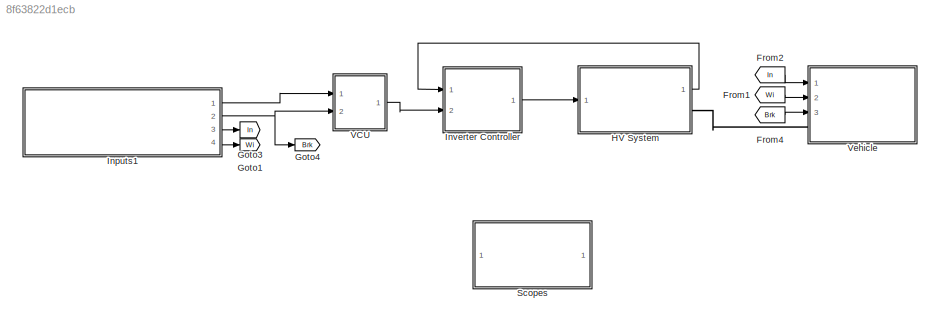
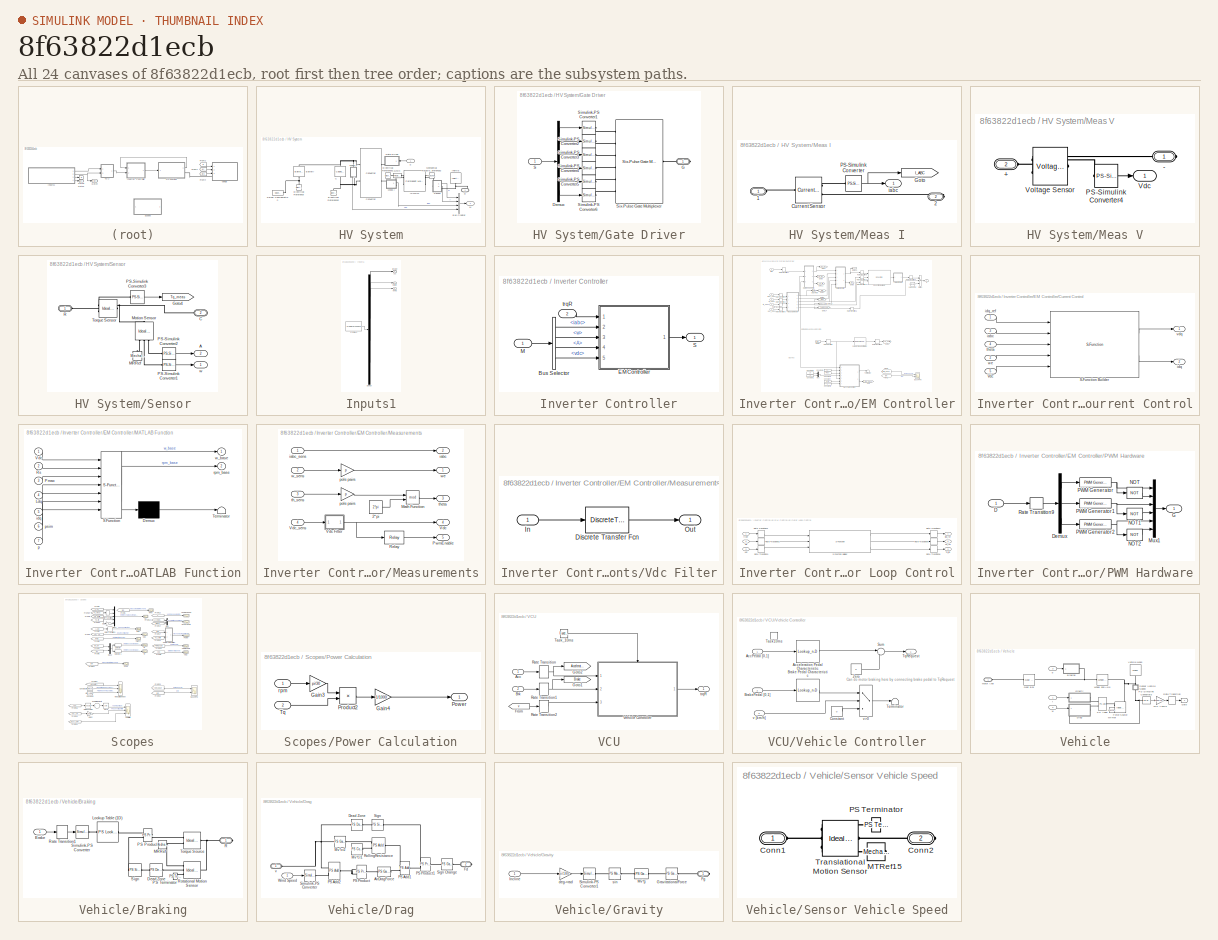
[diagram: thumbnail index - all 24 canvases of the model, root first then tree order]
MODEL slx_8f63822d1ecb
KIND model
CONFIG AbsTol = auto
CONFIG EnableMultiTasking = on
CONFIG FixedStep = Ts
CONFIG MaxStep = auto
CONFIG MinStep = auto
CONFIG RelTol = 1e-3
CONFIG SampleTimeConstraint = Unconstrained
CONFIG Solver = FixedStepDiscrete
CONFIG SolverName = FixedStepDiscrete
CONFIG StartTime = 0.0
CONFIG StopTime = 8
BLOCK [From] From1
  GotoTag = Wi
  TagVisibility = global
BLOCK [From] From2
  GotoTag = In
  TagVisibility = global
BLOCK [From] From4
  GotoTag = Brk
  TagVisibility = global
BLOCK [Goto] Goto1
  GotoTag = Wi
  TagVisibility = global
BLOCK [Goto] Goto3
  GotoTag = In
  TagVisibility = global
BLOCK [Goto] Goto4
  GotoTag = Brk
  TagVisibility = global
BLOCK [SubSystem] HV System
  Ports = [1, 1, 0, 0, 0, 0, 1]
  RequestExecContextInheritance = off
BLOCK [Reference] HV System/Battery  REF=pe_lib/Sources/Battery
  Ports = [0, 0, 0, 0, 0, 1, 1]
  SourceBlock = pe_lib/Sources/Battery
  SourceProductBaseCode = PS
  SourceProductName = Simscape Power Systems
  SourceType = Battery
BLOCK [BusCreator] HV System/Bus Creator
  DisplayOption = bar
  InheritFromInputs = on
  Inputs = 4
  Ports = [4, 1]
BLOCK [Reference] HV System/C  REF=fl_lib/Electrical/Electrical Elements/Capacitor
  Ports = [0, 0, 0, 0, 0, 1, 1]
  SourceBlock = fl_lib/Electrical/Electrical Elements/Capacitor
  SourceProductName = Foundation Library
  SourceType = Capacitor
BLOCK [Reference] HV System/Converter  REF=pe_lib/Semiconductors/Converter
  Ports = [0, 0, 0, 0, 0, 2, 2]
  SourceBlock = pe_lib/Semiconductors/Converter
  SourceProductBaseCode = PS
  SourceProductName = Simscape Power Systems
  SourceType = Converter
BLOCK [Reference] HV System/Electrical Reference  REF=fl_lib/Electrical/Electrical Elements/Electrical Reference
  Ports = [0, 0, 0, 0, 0, 1]
  SourceBlock = fl_lib/Electrical/Electrical Elements/Electrical Reference
  SourceProductName = Foundation Library
  SourceType = Electrical Reference
BLOCK [Reference] HV System/Electrical Reference1  REF=fl_lib/Electrical/Electrical Elements/Electrical Reference
  Ports = [0, 0, 0, 0, 0, 1]
  SourceBlock = fl_lib/Electrical/Electrical Elements/Electrical Reference
  SourceProductName = Foundation Library
  SourceType = Electrical Reference
BLOCK [Reference] HV System/Electrical Reference2  REF=fl_lib/Electrical/Electrical Elements/Electrical Reference
  Ports = [0, 0, 0, 0, 0, 1]
  SourceBlock = fl_lib/Electrical/Electrical Elements/Electrical Reference
  SourceProductName = Foundation Library
  SourceType = Electrical Reference
BLOCK [SubSystem] HV System/Gate Driver
  Ports = [1, 0, 0, 0, 0, 0, 1]
  RequestExecContextInheritance = off
BLOCK [Demux] HV System/Gate Driver/Demux
  DisplayOption = bar
  Outputs = 6
  Ports = [1, 6]
BLOCK [PMIOPort] HV System/Gate Driver/G
  Side = Right
BLOCK [Inport] HV System/Gate Driver/S
  IconDisplay = Port number
BLOCK [Reference] HV System/Gate Driver/Simulink-PS Converter1  REF=nesl_utility/Simulink-PS
Converter
  Ports = [1, 0, 0, 0, 0, 0, 1]
  SourceBlock = nesl_utility/Simulink-PS\nConverter
  SourceProductBaseCode = SS
  SourceProductName = Simscape
  SourceType = Simulink-PS\nConverter
BLOCK [Reference] HV System/Gate Driver/Simulink-PS Converter2  REF=nesl_utility/Simulink-PS
Converter
  Ports = [1, 0, 0, 0, 0, 0, 1]
  SourceBlock = nesl_utility/Simulink-PS\nConverter
  SourceProductBaseCode = SS
  SourceProductName = Simscape
  SourceType = Simulink-PS\nConverter
BLOCK [Reference] HV System/Gate Driver/Simulink-PS Converter3  REF=nesl_utility/Simulink-PS
Converter
  Ports = [1, 0, 0, 0, 0, 0, 1]
  SourceBlock = nesl_utility/Simulink-PS\nConverter
  SourceProductBaseCode = SS
  SourceProductName = Simscape
  SourceType = Simulink-PS\nConverter
BLOCK [Reference] HV System/Gate Driver/Simulink-PS Converter4  REF=nesl_utility/Simulink-PS
Converter
  Ports = [1, 0, 0, 0, 0, 0, 1]
  SourceBlock = nesl_utility/Simulink-PS\nConverter
  SourceProductBaseCode = SS
  SourceProductName = Simscape
  SourceType = Simulink-PS\nConverter
BLOCK [Reference] HV System/Gate Driver/Simulink-PS Converter5  REF=nesl_utility/Simulink-PS
Converter
  Ports = [1, 0, 0, 0, 0, 0, 1]
  SourceBlock = nesl_utility/Simulink-PS\nConverter
  SourceProductBaseCode = SS
  SourceProductName = Simscape
  SourceType = Simulink-PS\nConverter
BLOCK [Reference] HV System/Gate Driver/Simulink-PS Converter6  REF=nesl_utility/Simulink-PS
Converter
  Ports = [1, 0, 0, 0, 0, 0, 1]
  SourceBlock = nesl_utility/Simulink-PS\nConverter
  SourceProductBaseCode = SS
  SourceProductName = Simscape
  SourceType = Simulink-PS\nConverter
BLOCK [Reference] HV System/Gate Driver/Six-Pulse Gate Multiplexer  REF=pe_lib/Semiconductors/Six-Pulse Gate
Multiplexer
  Ports = [0, 0, 0, 0, 0, 6, 1]
  SourceBlock = pe_lib/Semiconductors/Six-Pulse Gate\nMultiplexer
  SourceProductBaseCode = PS
  SourceProductName = Simscape Power Systems
  SourceType = Six-Pulse Gate\nMultiplexer
BLOCK [Reference] HV System/Gmin  REF=fl_lib/Electrical/Electrical Elements/Resistor
  Ports = [0, 0, 0, 0, 0, 1, 1]
  SourceBlock = fl_lib/Electrical/Electrical Elements/Resistor
  SourceProductName = Foundation Library
  SourceType = Resistor
BLOCK [Reference] HV System/IPMSM  REF=pe_lib/Machines/Permanent Magnet
Rotor/Permanent Magnet
Synchronous Motor
  Ports = [0, 0, 0, 0, 0, 2, 2]
  SourceBlock = pe_lib/Machines/Permanent Magnet\nRotor/Permanent Magnet\nSynchronous Motor
  SourceProductBaseCode = PS
  SourceProductName = Simscape Power Systems
  SourceType = Permanent Magnet\nSynchronous Motor
BLOCK [Reference] HV System/Inertia  REF=fl_lib/Mechanical/Rotational Elements/Inertia
  Ports = [0, 0, 0, 0, 0, 1]
  SourceBlock = fl_lib/Mechanical/Rotational Elements/Inertia
  SourceProductName = Foundation Library
  SourceType = Inertia
BLOCK [Outport] HV System/M
  IconDisplay = Port number
BLOCK [SubSystem] HV System/Meas I
  Ports = [0, 1, 0, 0, 0, 1, 1]
  RequestExecContextInheritance = off
BLOCK [PMIOPort] HV System/Meas I/1
  Side = Left
BLOCK [PMIOPort] HV System/Meas I/2
  Port = 2
  Side = Right
BLOCK [Reference] HV System/Meas I/Current Sensor  REF=pe_lib/Sensors/Current Sensor
  Ports = [0, 0, 0, 0, 0, 1, 2]
  SourceBlock = pe_lib/Sensors/Current Sensor
  SourceProductBaseCode = PS
  SourceProductName = Simscape Power Systems
  SourceType = Current Sensor
BLOCK [Goto] HV System/Meas I/Goto
  GotoTag = I_ABC
  TagVisibility = global
BLOCK [Reference] HV System/Meas I/PS-Simulink Converter  REF=nesl_utility/PS-Simulink
Converter
  Ports = [0, 1, 0, 0, 0, 1]
  SourceBlock = nesl_utility/PS-Simulink\nConverter
  SourceProductBaseCode = SS
  SourceProductName = Simscape
  SourceType = PS-Simulink\nConverter
BLOCK [Outport] HV System/Meas I/iabc
  IconDisplay = Port number
BLOCK [SubSystem] HV System/Meas V
  Ports = [0, 1, 0, 0, 0, 1, 1]
  RequestExecContextInheritance = off
BLOCK [PMIOPort] HV System/Meas V/+
  Port = 2
  Side = Left
BLOCK [PMIOPort] HV System/Meas V/-
  Side = Right
BLOCK [Reference] HV System/Meas V/PS-Simulink Converter4  REF=nesl_utility/PS-Simulink
Converter
  Ports = [0, 1, 0, 0, 0, 1]
  SourceBlock = nesl_utility/PS-Simulink\nConverter
  SourceProductBaseCode = SS
  SourceProductName = Simscape
  SourceType = PS-Simulink\nConverter
BLOCK [Outport] HV System/Meas V/Vdc
  IconDisplay = Port number
BLOCK [Reference] HV System/Meas V/Voltage Sensor  REF=fl_lib/Electrical/Electrical Sensors/Voltage Sensor
  Ports = [0, 0, 0, 0, 0, 1, 2]
  SourceBlock = fl_lib/Electrical/Electrical Sensors/Voltage Sensor
  SourceProductName = Foundation Library
  SourceType = Voltage Sensor
BLOCK [Reference] HV System/Mechanical Rotational Reference2  REF=fl_lib/Mechanical/Rotational Elements/Mechanical
Rotational Reference
  Ports = [0, 0, 0, 0, 0, 1]
  SourceBlock = fl_lib/Mechanical/Rotational Elements/Mechanical\nRotational Reference
  SourceProductName = Foundation Library
  SourceType = Mechanical\nRotational Reference
BLOCK [PMIOPort] HV System/R
  Side = Right
BLOCK [Inport] HV System/S
  IconDisplay = Port number
BLOCK [SubSystem] HV System/Sensor
  Ports = [0, 2, 0, 0, 0, 1, 1]
  RequestExecContextInheritance = off
BLOCK [Outport] HV System/Sensor/A
  IconDisplay = Port number
  Port = 2
BLOCK [PMIOPort] HV System/Sensor/C
  Port = 2
  Side = Right
BLOCK [Goto] HV System/Sensor/Goto4
  GotoTag = Tq_meas
  TagVisibility = global
BLOCK [Reference] HV System/Sensor/MRRef  REF=fl_lib/Mechanical/Rotational Elements/Mechanical
Rotational Reference
  Ports = [0, 0, 0, 0, 0, 1]
  SourceBlock = fl_lib/Mechanical/Rotational Elements/Mechanical\nRotational Reference
  SourceProductName = Foundation Library
  SourceType = Mechanical\nRotational Reference
BLOCK [Reference] HV System/Sensor/Motion Sensor  REF=fl_lib/Mechanical/Mechanical Sensors/Ideal Rotational
Motion Sensor
  Ports = [0, 0, 0, 0, 0, 1, 3]
  SourceBlock = fl_lib/Mechanical/Mechanical Sensors/Ideal Rotational\nMotion Sensor
  SourceProductName = Foundation Library
  SourceType = Ideal Rotational\nMotion Sensor
BLOCK [Reference] HV System/Sensor/PS-Simulink Converter1  REF=nesl_utility/PS-Simulink
Converter
  Ports = [0, 1, 0, 0, 0, 1]
  SourceBlock = nesl_utility/PS-Simulink\nConverter
  SourceProductBaseCode = SS
  SourceProductName = Simscape
  SourceType = PS-Simulink\nConverter
BLOCK [Reference] HV System/Sensor/PS-Simulink Converter2  REF=nesl_utility/PS-Simulink
Converter
  Ports = [0, 1, 0, 0, 0, 1]
  SourceBlock = nesl_utility/PS-Simulink\nConverter
  SourceProductBaseCode = SS
  SourceProductName = Simscape
  SourceType = PS-Simulink\nConverter
BLOCK [Reference] HV System/Sensor/PS-Simulink Converter3  REF=nesl_utility/PS-Simulink
Converter
  Ports = [0, 1, 0, 0, 0, 1]
  SourceBlock = nesl_utility/PS-Simulink\nConverter
  SourceProductBaseCode = SS
  SourceProductName = Simscape
  SourceType = PS-Simulink\nConverter
BLOCK [PMIOPort] HV System/Sensor/R
  Side = Left
BLOCK [Reference] HV System/Sensor/Torque Sensor  REF=fl_lib/Mechanical/Mechanical Sensors/Ideal Torque Sensor
  Ports = [0, 0, 0, 0, 0, 1, 2]
  SourceBlock = fl_lib/Mechanical/Mechanical Sensors/Ideal Torque Sensor
  SourceProductName = Foundation Library
  SourceType = Ideal Torque Sensor
BLOCK [Outport] HV System/Sensor/w
  IconDisplay = Port number
BLOCK [Reference] HV System/Solver Configuration  REF=nesl_utility/Solver
Configuration
  Ports = [0, 0, 0, 0, 0, 0, 1]
  SourceBlock = nesl_utility/Solver\nConfiguration
  SourceProductBaseCode = SS
  SourceProductName = Simscape
  SourceType = Solver\nConfiguration
BLOCK [SubSystem] Inputs1
  ClipboardFcn = sigbuilder_block('clipboard');
  CloseFcn = sigbuilder_block('close');
  ContinueFcn = sigbuilder_block('continue');
  CopyFcn = sigbuilder_block('copy');
  DeleteFcn = sigbuilder_block('delete');
  LoadFcn = sigbuilder_block('load');
  MaskHideContents = on
  ModelCloseFcn = sigbuilder_block('modelClose');
  NameChangeFcn = sigbuilder_block('namechange');
  OpenFcn = sigbuilder_block('open',[335 403 958 460 ]);
  PauseFcn = sigbuilder_block('pause');
  Ports = [0, 4]
  PreSaveFcn = sigbuilder_block('preSave');
  RequestExecContextInheritance = off
  StartFcn = sigbuilder_block('start');
  StopFcn = sigbuilder_block('stop');
  Tag = STV Subsys
BLOCK [Outport] Inputs1/Acc
  IconDisplay = Port number
  Tag = STV Outport
BLOCK [Outport] Inputs1/Brake
  IconDisplay = Port number
  Port = 2
  Tag = STV Outport
BLOCK [Demux] Inputs1/Demux
  Ports = [1, 4]
  Tag = STV Demux
BLOCK [FromWorkspace] Inputs1/FromWs
  SampleTime = 0
  Tag = STV FromWs
  VariableName = tuvar
  ZeroCross = on
BLOCK [Outport] Inputs1/Incline
  IconDisplay = Port number
  Port = 3
  Tag = STV Outport
BLOCK [Outport] Inputs1/Wind
  IconDisplay = Port number
  Port = 4
  Tag = STV Outport
BLOCK [SubSystem] Inverter Controller
  Ports = [2, 1]
  RequestExecContextInheritance = off
BLOCK [BusSelector] Inverter Controller/Bus Selector
  OutputAsBus = off
  OutputSignals = iabc,w,A,vdc
  Ports = [1, 4]
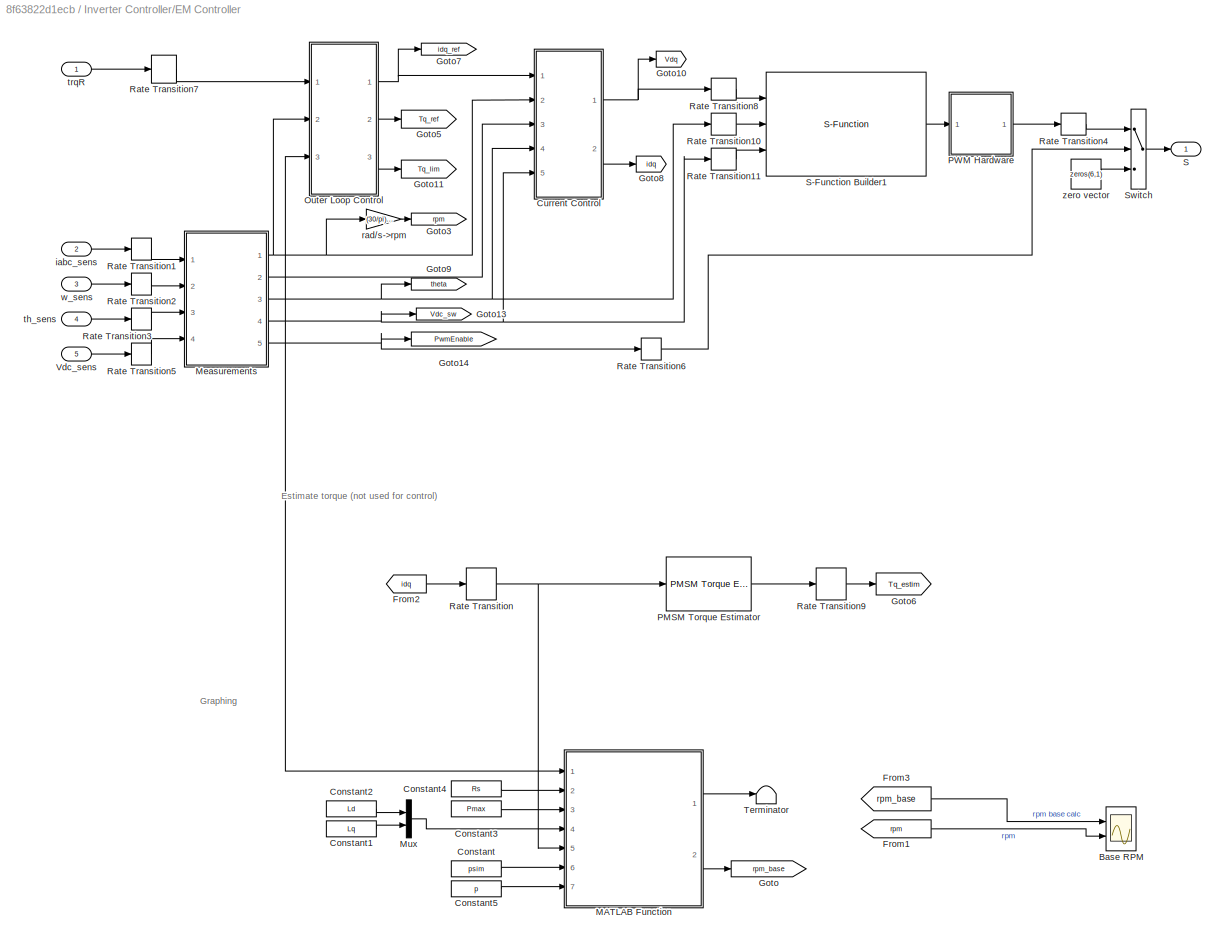
BLOCK [SubSystem] Inverter Controller/EM Controller
  Ports = [5, 1]
  RequestExecContextInheritance = off
BLOCK [Scope] Inverter Controller/EM Controller/Base RPM
  Floating = off
  NumInputPorts = 2
  Ports = [2]
  ScopeSpecificationString = Simulink.scopes.TimeScopeBlockCfg('CurrentConfiguration', extmgr.ConfigurationSet(extmgr.Configuration('Core','General UI',true),extmgr.Configuration('Core','Source UI',true),extmgr.Configuration('Sources','WiredSimulink',true,'DataLoggingVariableName','ScopeData1'),extmgr.Configuration('Visuals','Time Domain',true,'SerializedDisplays',{struct('MinYLimReal','-425.45841','MaxYLimReal','3829.12573',...<+1557ch>
BLOCK [Constant] Inverter Controller/EM Controller/Constant
  Value = psim
BLOCK [Constant] Inverter Controller/EM Controller/Constant1
  Value = Lq
BLOCK [Constant] Inverter Controller/EM Controller/Constant2
  Value = Ld
BLOCK [Constant] Inverter Controller/EM Controller/Constant3
  Value = Pmax
BLOCK [Constant] Inverter Controller/EM Controller/Constant4
  Value = Rs
BLOCK [Constant] Inverter Controller/EM Controller/Constant5
  Value = p
BLOCK [SubSystem] Inverter Controller/EM Controller/Current Control
  Ports = [5, 2]
  RequestExecContextInheritance = off
BLOCK [S-Function] Inverter Controller/EM Controller/Current Control/S-Function Builder
  CopyFcn = set_param(gcbh,'LinkStatus','none')
  EnableBusSupport = off
  FunctionName = PMSMCurrentControllerWrapper
  InitFcn = try, set_param(gcb,'FunctionName','PMSMCurrentControllerWrapper'), end
  OpenFcn = sfunctionwizard(gcbh)
  Parameters = Tsi,Kp_id,Ki_id,Kp_iq,Ki_iq
  Ports = [5, 2]
  PreSaveFcn = try, set_param(gcb,'FunctionName','PMSMCurrentControllerWrapper'), end
  SFcnIsStateOwnerBlock = off
  SFunctionDeploymentMode = off
  SFunctionModules = PMSMCurrentControllerWrapper_wrapper PMSMCurrentController transforms pid sat
BLOCK [Inport] Inverter Controller/EM Controller/Current Control/Vdc
  IconDisplay = Port number
  Port = 5
BLOCK [Inport] Inverter Controller/EM Controller/Current Control/iabc
  IconDisplay = Port number
  Port = 3
BLOCK [Outport] Inverter Controller/EM Controller/Current Control/idq
  IconDisplay = Port number
  Port = 2
BLOCK [Inport] Inverter Controller/EM Controller/Current Control/idq_ref
  IconDisplay = Port number
BLOCK [Inport] Inverter Controller/EM Controller/Current Control/theta
  IconDisplay = Port number
  Port = 4
BLOCK [Outport] Inverter Controller/EM Controller/Current Control/vdq
  IconDisplay = Port number
BLOCK [Inport] Inverter Controller/EM Controller/Current Control/we
  IconDisplay = Port number
  Port = 2
BLOCK [From] Inverter Controller/EM Controller/From1
  GotoTag = rpm
  TagVisibility = global
BLOCK [From] Inverter Controller/EM Controller/From2
  GotoTag = idq
  TagVisibility = global
BLOCK [From] Inverter Controller/EM Controller/From3
  GotoTag = rpm_base
  TagVisibility = global
BLOCK [Goto] Inverter Controller/EM Controller/Goto
  GotoTag = rpm_base
  TagVisibility = global
BLOCK [Goto] Inverter Controller/EM Controller/Goto10
  GotoTag = Vdq
  TagVisibility = global
BLOCK [Goto] Inverter Controller/EM Controller/Goto11
  GotoTag = Tq_lim
  TagVisibility = global
BLOCK [Goto] Inverter Controller/EM Controller/Goto13
  GotoTag = Vdc_sw
  TagVisibility = global
BLOCK [Goto] Inverter Controller/EM Controller/Goto14
  GotoTag = PwmEnable
  TagVisibility = global
BLOCK [Goto] Inverter Controller/EM Controller/Goto3
  GotoTag = rpm
  TagVisibility = global
BLOCK [Goto] Inverter Controller/EM Controller/Goto5
  GotoTag = Tq_ref
  TagVisibility = global
BLOCK [Goto] Inverter Controller/EM Controller/Goto6
  GotoTag = Tq_estim
  TagVisibility = global
BLOCK [Goto] Inverter Controller/EM Controller/Goto7
  GotoTag = idq_ref
  TagVisibility = global
BLOCK [Goto] Inverter Controller/EM Controller/Goto8
  GotoTag = idq
  TagVisibility = global
BLOCK [Goto] Inverter Controller/EM Controller/Goto9
  GotoTag = theta
  TagVisibility = global
BLOCK [SubSystem] Inverter Controller/EM Controller/MATLAB Function
  ErrorFcn = Stateflow.Translate.translate
  PermitHierarchicalResolution = ExplicitOnly
  Ports = [7, 2]
  RequestExecContextInheritance = off
  SFBlockType = MATLAB Function
  SystemSampleTime = Tso
  TreatAsAtomicUnit = on
BLOCK [Demux] Inverter Controller/EM Controller/MATLAB Function/ Demux 
  Outputs = 1
  Ports = [1, 1]
BLOCK [S-Function] Inverter Controller/EM Controller/MATLAB Function/ SFunction 
  EnableBusSupport = on
  FunctionName = sf_sfun
  PortCounts = [7 3]
  Ports = [7, 3]
  SFcnIsStateOwnerBlock = off
  SFunctionDeploymentMode = off
  Tag = Stateflow S-Function vehiclesim_cImpl 2
BLOCK [Terminator] Inverter Controller/EM Controller/MATLAB Function/ Terminator 
BLOCK [Inport] Inverter Controller/EM Controller/MATLAB Function/Ldq
  IconDisplay = Port number
  Port = 4
BLOCK [Inport] Inverter Controller/EM Controller/MATLAB Function/Pmax
  IconDisplay = Port number
  Port = 3
BLOCK [Inport] Inverter Controller/EM Controller/MATLAB Function/Rs
  IconDisplay = Port number
  Port = 2
BLOCK [Inport] Inverter Controller/EM Controller/MATLAB Function/Vdc
  IconDisplay = Port number
BLOCK [Inport] Inverter Controller/EM Controller/MATLAB Function/idq
  IconDisplay = Port number
  Port = 5
BLOCK [Inport] Inverter Controller/EM Controller/MATLAB Function/p
  IconDisplay = Port number
  Port = 7
BLOCK [Inport] Inverter Controller/EM Controller/MATLAB Function/psim
  IconDisplay = Port number
  Port = 6
BLOCK [Outport] Inverter Controller/EM Controller/MATLAB Function/rpm_base
  IconDisplay = Port number
  Port = 2
BLOCK [Outport] Inverter Controller/EM Controller/MATLAB Function/w_base
  IconDisplay = Port number
BLOCK [SubSystem] Inverter Controller/EM Controller/Measurements
  Ports = [4, 5]
  RequestExecContextInheritance = off
BLOCK [Constant] Inverter Controller/EM Controller/Measurements/2*pi
  SampleTime = Tsi
  Value = 2*pi
BLOCK [Math] Inverter Controller/EM Controller/Measurements/Math Function
  Operator = mod
  Ports = [2, 1]
BLOCK [Outport] Inverter Controller/EM Controller/Measurements/PwmEnable
  IconDisplay = Port number
  Port = 5
BLOCK [Relay] Inverter Controller/EM Controller/Measurements/Relay
  InputProcessing = Elements as channels (sample based)
  OffSwitchValue = V1/4
  OnSwitchValue = V1/2
BLOCK [Outport] Inverter Controller/EM Controller/Measurements/Vdc
  IconDisplay = Port number
  Port = 4
BLOCK [SubSystem] Inverter Controller/EM Controller/Measurements/Vdc Filter
  Ports = [1, 1]
  RequestExecContextInheritance = off
BLOCK [DiscreteTransferFcn] Inverter Controller/EM Controller/Measurements/Vdc Filter/Discrete Transfer Fcn
  Denominator = den
  InputPortMap = u0
  Numerator = num
  Ports = [1, 1]
BLOCK [Inport] Inverter Controller/EM Controller/Measurements/Vdc Filter/In
  IconDisplay = Port number
BLOCK [Outport] Inverter Controller/EM Controller/Measurements/Vdc Filter/Out
  IconDisplay = Port number
BLOCK [Inport] Inverter Controller/EM Controller/Measurements/Vdc_sens
  IconDisplay = Port number
  Port = 4
BLOCK [Outport] Inverter Controller/EM Controller/Measurements/iabc
  IconDisplay = Port number
  Port = 2
BLOCK [Inport] Inverter Controller/EM Controller/Measurements/iabc_sens
  IconDisplay = Port number
BLOCK [Gain] Inverter Controller/EM Controller/Measurements/pole pairs
  Gain = p
  OutDataTypeStr = Inherit: Inherit via internal rule
  ParamDataTypeStr = Inherit: Inherit via internal rule
  SaturateOnIntegerOverflow = off
BLOCK [Gain] Inverter Controller/EM Controller/Measurements/pole pairs 
  Gain = p
  OutDataTypeStr = Inherit: Inherit via internal rule
  ParamDataTypeStr = Inherit: Inherit via internal rule
  SaturateOnIntegerOverflow = off
BLOCK [Inport] Inverter Controller/EM Controller/Measurements/th_sens
  IconDisplay = Port number
  Port = 3
BLOCK [Outport] Inverter Controller/EM Controller/Measurements/theta
  IconDisplay = Port number
  Port = 3
BLOCK [Inport] Inverter Controller/EM Controller/Measurements/w_sens
  IconDisplay = Port number
  Port = 2
BLOCK [Outport] Inverter Controller/EM Controller/Measurements/we
  IconDisplay = Port number
BLOCK [Mux] Inverter Controller/EM Controller/Mux
  DisplayOption = bar
  Inputs = 2
  Ports = [2, 1]
BLOCK [SubSystem] Inverter Controller/EM Controller/Outer Loop Control
  Ports = [3, 3]
  RequestExecContextInheritance = off
BLOCK [RateTransition] Inverter Controller/EM Controller/Outer Loop Control/Rate Transition1
  OutPortSampleTime = Tso
BLOCK [RateTransition] Inverter Controller/EM Controller/Outer Loop Control/Rate Transition2
  OutPortSampleTime = Tso
BLOCK [RateTransition] Inverter Controller/EM Controller/Outer Loop Control/Rate Transition3
  OutPortSampleTime = Tso
BLOCK [RateTransition] Inverter Controller/EM Controller/Outer Loop Control/Rate Transition4
  OutPortSampleTime = Tsi
BLOCK [RateTransition] Inverter Controller/EM Controller/Outer Loop Control/Rate Transition5
  OutPortSampleTime = Tsi
BLOCK [RateTransition] Inverter Controller/EM Controller/Outer Loop Control/Rate Transition6
  OutPortSampleTime = Tsi
BLOCK [S-Function] Inverter Controller/EM Controller/Outer Loop Control/S-Function Builder
  CopyFcn = set_param(gcbh,'LinkStatus','none')
  EnableBusSupport = off
  FunctionName = PMSMCurrentRefWrapper
  InitFcn = try, set_param(gcb,'FunctionName','PMSMCurrentRefWrapper'), end
  OpenFcn = sfunctionwizard(gcbh)
  Parameters = Tsi,Vnom,Pmax,Tmax,Imax,p,psim,Ld,Ke,Mfw_threshold,Mfw_saturation
  Ports = [3, 3]
  PreSaveFcn = try, set_param(gcb,'FunctionName','PMSMCurrentRefWrapper'), end
  SFcnIsStateOwnerBlock = off
  SFunctionDeploymentMode = off
  SFunctionModules = PMSMCurrentRefWrapper_wrapper PMSMCurrentRef sat
BLOCK [Outport] Inverter Controller/EM Controller/Outer Loop Control/Tq_lim
  IconDisplay = Port number
  Port = 3
BLOCK [Outport] Inverter Controller/EM Controller/Outer Loop Control/Tq_ref
  IconDisplay = Port number
  Port = 2
BLOCK [Inport] Inverter Controller/EM Controller/Outer Loop Control/Vdc
  IconDisplay = Port number
  Port = 3
BLOCK [Outport] Inverter Controller/EM Controller/Outer Loop Control/idq_ref
  IconDisplay = Port number
BLOCK [Inport] Inverter Controller/EM Controller/Outer Loop Control/trqR
  IconDisplay = Port number
BLOCK [Inport] Inverter Controller/EM Controller/Outer Loop Control/we
  IconDisplay = Port number
  Port = 2
BLOCK [Reference] Inverter Controller/EM Controller/PMSM Torque Estimator  REF=pePmsmTorqueEstimator/PMSM Torque
Estimator
  Ports = [1, 1]
  SourceBlock = pePmsmTorqueEstimator/PMSM Torque\nEstimator
  SourceType = PMSM Torque Estimator
BLOCK [SubSystem] Inverter Controller/EM Controller/PWM Hardware
  Ports = [1, 1]
  RequestExecContextInheritance = off
BLOCK [Inport] Inverter Controller/EM Controller/PWM Hardware/D
  IconDisplay = Port number
BLOCK [Demux] Inverter Controller/EM Controller/PWM Hardware/Demux
  DisplayOption = bar
  Outputs = 3
  Ports = [1, 3]
BLOCK [Outport] Inverter Controller/EM Controller/PWM Hardware/G
  IconDisplay = Port number
BLOCK [Mux] Inverter Controller/EM Controller/PWM Hardware/Mux1
  DisplayOption = bar
  Inputs = 6
  Ports = [6, 1]
BLOCK [Logic] Inverter Controller/EM Controller/PWM Hardware/NOT
  AllPortsSameDT = off
  IconShape = distinctive
  Operator = NOT
  OutDataTypeStr = boolean
  Ports = [1, 1]
BLOCK [Logic] Inverter Controller/EM Controller/PWM Hardware/NOT1
  AllPortsSameDT = off
  IconShape = distinctive
  Operator = NOT
  OutDataTypeStr = boolean
  Ports = [1, 1]
BLOCK [Logic] Inverter Controller/EM Controller/PWM Hardware/NOT2
  AllPortsSameDT = off
  IconShape = distinctive
  Operator = NOT
  OutDataTypeStr = boolean
  Ports = [1, 1]
BLOCK [Reference] Inverter Controller/EM Controller/PWM Hardware/PWM Generator  REF=pePwmGenerator/PWM Generator
  Ports = [1, 1]
  SourceBlock = pePwmGenerator/PWM Generator
  SourceType = PWM Generator
BLOCK [Reference] Inverter Controller/EM Controller/PWM Hardware/PWM Generator1  REF=pePwmGenerator/PWM Generator
  Ports = [1, 1]
  SourceBlock = pePwmGenerator/PWM Generator
  SourceType = PWM Generator
BLOCK [Reference] Inverter Controller/EM Controller/PWM Hardware/PWM Generator2  REF=pePwmGenerator/PWM Generator
  Ports = [1, 1]
  SourceBlock = pePwmGenerator/PWM Generator
  SourceType = PWM Generator
BLOCK [RateTransition] Inverter Controller/EM Controller/PWM Hardware/Rate Transition9
BLOCK [RateTransition] Inverter Controller/EM Controller/Rate Transition
  OutPortSampleTime = Tso
BLOCK [RateTransition] Inverter Controller/EM Controller/Rate Transition1
  OutPortSampleTime = Tsi
BLOCK [RateTransition] Inverter Controller/EM Controller/Rate Transition10
  OutPortSampleTime = Tsi
BLOCK [RateTransition] Inverter Controller/EM Controller/Rate Transition11
  OutPortSampleTime = Tsi
BLOCK [RateTransition] Inverter Controller/EM Controller/Rate Transition2
  OutPortSampleTime = Tsi
BLOCK [RateTransition] Inverter Controller/EM Controller/Rate Transition3
  OutPortSampleTime = Tsi
BLOCK [RateTransition] Inverter Controller/EM Controller/Rate Transition4
BLOCK [RateTransition] Inverter Controller/EM Controller/Rate Transition5
  OutPortSampleTime = Tsi
BLOCK [RateTransition] Inverter Controller/EM Controller/Rate Transition6
BLOCK [RateTransition] Inverter Controller/EM Controller/Rate Transition7
  OutPortSampleTime = Tsi
BLOCK [RateTransition] Inverter Controller/EM Controller/Rate Transition8
  OutPortSampleTime = Tsi
BLOCK [RateTransition] Inverter Controller/EM Controller/Rate Transition9
  OutPortSampleTime = Tsi
BLOCK [Outport] Inverter Controller/EM Controller/S
  IconDisplay = Port number
BLOCK [S-Function] Inverter Controller/EM Controller/S-Function Builder1
  CopyFcn = set_param(gcbh,'LinkStatus','none')
  EnableBusSupport = off
  FunctionName = SPWMWrapper
  InitFcn = try, set_param(gcb,'FunctionName','SPWMWrapper'), end
  OpenFcn = sfunctionwizard(gcbh)
  Ports = [3, 1]
  PreSaveFcn = try, set_param(gcb,'FunctionName','SPWMWrapper'), end
  SFcnIsStateOwnerBlock = off
  SFunctionDeploymentMode = off
  SFunctionModules = SPWMWrapper_wrapper SPWM transforms sat
BLOCK [Switch] Inverter Controller/EM Controller/Switch
  Criteria = u2 > Threshold
  InputSameDT = off
  SaturateOnIntegerOverflow = off
BLOCK [Terminator] Inverter Controller/EM Controller/Terminator
BLOCK [Inport] Inverter Controller/EM Controller/Vdc_sens
  IconDisplay = Port number
  Port = 5
BLOCK [Inport] Inverter Controller/EM Controller/iabc_sens
  IconDisplay = Port number
  Port = 2
BLOCK [Gain] Inverter Controller/EM Controller/rad//s->rpm
  Gain = (30/pi)/p
  OutDataTypeStr = Inherit: Inherit via internal rule
  ParamDataTypeStr = Inherit: Inherit via internal rule
  SaturateOnIntegerOverflow = off
BLOCK [Inport] Inverter Controller/EM Controller/th_sens
  IconDisplay = Port number
  Port = 4
BLOCK [Inport] Inverter Controller/EM Controller/trqR
  IconDisplay = Port number
BLOCK [Inport] Inverter Controller/EM Controller/w_sens
  IconDisplay = Port number
  Port = 3
BLOCK [Constant] Inverter Controller/EM Controller/zero vector
  Value = zeros(6,1)
BLOCK [Inport] Inverter Controller/M
  IconDisplay = Port number
BLOCK [Outport] Inverter Controller/S
  IconDisplay = Port number
BLOCK [Inport] Inverter Controller/trqR
  IconDisplay = Port number
  Port = 2
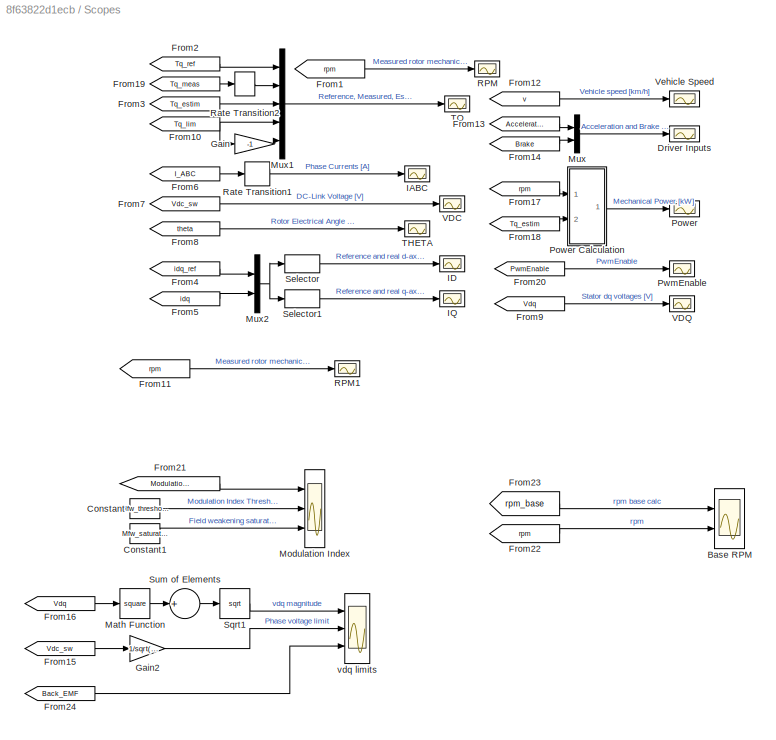
BLOCK [SubSystem] Scopes
  Ports = []
  RequestExecContextInheritance = off
BLOCK [Scope] Scopes/Base RPM
  Floating = off
  NumInputPorts = 2
  Ports = [2]
  ScopeSpecificationString = Simulink.scopes.TimeScopeBlockCfg('CurrentConfiguration', extmgr.ConfigurationSet(extmgr.Configuration('Core','General UI',true),extmgr.Configuration('Core','Source UI',true),extmgr.Configuration('Sources','WiredSimulink',true,'DataLoggingVariableName','ScopeData2'),extmgr.Configuration('Visuals','Time Domain',true,'SerializedDisplays',{struct('MinYLimReal','-988.69649','MaxYLimReal','8896.41279',...<+1582ch>
BLOCK [Constant] Scopes/Constant
  Value = Mfw_threshold
BLOCK [Constant] Scopes/Constant1
  Value = Mfw_saturation
BLOCK [Scope] Scopes/Driver Inputs
  Floating = off
  NumInputPorts = 1
  Ports = [1]
  ScopeSpecificationString = Simulink.scopes.TimeScopeBlockCfg('CurrentConfiguration', extmgr.ConfigurationSet(extmgr.Configuration('Core','General UI',true),extmgr.Configuration('Core','Source UI',true),extmgr.Configuration('Sources','WiredSimulink',true,'DataLoggingVariableName','ScopeData2'),extmgr.Configuration('Visuals','Time Domain',true,'SerializedDisplays',{struct('MinYLimReal','-0.125','MaxYLimReal','1.125','YLabelRe...<+1481ch>
BLOCK [From] Scopes/From1
  GotoTag = rpm
  TagVisibility = global
BLOCK [From] Scopes/From10
  GotoTag = Tq_lim
  TagVisibility = global
BLOCK [From] Scopes/From11
  GotoTag = rpm
  TagVisibility = global
BLOCK [From] Scopes/From12
  GotoTag = v
  TagVisibility = global
BLOCK [From] Scopes/From13
  GotoTag = Acceleration
  TagVisibility = global
BLOCK [From] Scopes/From14
  GotoTag = Brake
  TagVisibility = global
BLOCK [From] Scopes/From15
  GotoTag = Vdc_sw
  TagVisibility = global
BLOCK [From] Scopes/From16
  GotoTag = Vdq
  TagVisibility = global
BLOCK [From] Scopes/From17
  GotoTag = rpm
  TagVisibility = global
BLOCK [From] Scopes/From18
  GotoTag = Tq_estim
  TagVisibility = global
BLOCK [From] Scopes/From19
  GotoTag = Tq_meas
  TagVisibility = global
BLOCK [From] Scopes/From2
  GotoTag = Tq_ref
  TagVisibility = global
BLOCK [From] Scopes/From20
  GotoTag = PwmEnable
  TagVisibility = global
BLOCK [From] Scopes/From21
  GotoTag = Modulation_Index
BLOCK [From] Scopes/From22
  GotoTag = rpm
  TagVisibility = global
BLOCK [From] Scopes/From23
  GotoTag = rpm_base
  TagVisibility = global
BLOCK [From] Scopes/From24
  GotoTag = Back_EMF
BLOCK [From] Scopes/From3
  GotoTag = Tq_estim
  TagVisibility = global
BLOCK [From] Scopes/From4
  GotoTag = idq_ref
  TagVisibility = global
BLOCK [From] Scopes/From5
  GotoTag = idq
  TagVisibility = global
BLOCK [From] Scopes/From6
  GotoTag = I_ABC
  TagVisibility = global
BLOCK [From] Scopes/From7
  GotoTag = Vdc_sw
  TagVisibility = global
BLOCK [From] Scopes/From8
  GotoTag = theta
  TagVisibility = global
BLOCK [From] Scopes/From9
  GotoTag = Vdq
  TagVisibility = global
BLOCK [Gain] Scopes/Gain
  Gain = -1
  OutDataTypeStr = Inherit: Inherit via internal rule
  ParamDataTypeStr = Inherit: Inherit via internal rule
  SaturateOnIntegerOverflow = off
BLOCK [Gain] Scopes/Gain2
  Gain = 1/sqrt(3)
  OutDataTypeStr = Inherit: Inherit via internal rule
  ParamDataTypeStr = Inherit: Inherit via internal rule
  SaturateOnIntegerOverflow = off
BLOCK [Scope] Scopes/IABC
  Floating = off
  NumInputPorts = 1
  Ports = [1]
  ScopeSpecificationString = Simulink.scopes.TimeScopeBlockCfg('CurrentConfiguration', extmgr.ConfigurationSet(extmgr.Configuration('Core','General UI',true),extmgr.Configuration('Core','Source UI',true),extmgr.Configuration('Sources','WiredSimulink',true,'DataLoggingVariableName','ScopeData3'),extmgr.Configuration('Visuals','Time Domain',true,'SerializedDisplays',{struct('MinYLimReal','-457.50353','MaxYLimReal','457.01796','...<+1512ch>
BLOCK [Scope] Scopes/ID
  Floating = off
  NumInputPorts = 1
  Ports = [1]
  ScopeSpecificationString = Simulink.scopes.TimeScopeBlockCfg('CurrentConfiguration', extmgr.ConfigurationSet(extmgr.Configuration('Core','General UI',true),extmgr.Configuration('Core','Source UI',true),extmgr.Configuration('Sources','WiredSimulink',true,'DataLoggingVariableName','ScopeData4','DataLoggingSaveFormat','Array','DataLoggingDecimation','1','DataLoggingDecimateData',true),extmgr.Configuration('Visuals','Time Domai...<+1708ch>
BLOCK [Scope] Scopes/IQ
  Floating = off
  NumInputPorts = 1
  Ports = [1]
  ScopeSpecificationString = Simulink.scopes.TimeScopeBlockCfg('CurrentConfiguration', extmgr.ConfigurationSet(extmgr.Configuration('Core','General UI',true),extmgr.Configuration('Core','Source UI',true),extmgr.Configuration('Sources','WiredSimulink',true,'DataLoggingVariableName','ScopeData5','DataLoggingSaveFormat','Array','DataLoggingDecimation','1','DataLoggingDecimateData',true),extmgr.Configuration('Visuals','Time Domai...<+1683ch>
BLOCK [Math] Scopes/Math Function
  Operator = square
  Ports = [1, 1]
BLOCK [Scope] Scopes/Modulation Index
  Floating = off
  NumInputPorts = 3
  Ports = [3]
  ScopeSpecificationString = Simulink.scopes.TimeScopeBlockCfg('CurrentConfiguration', extmgr.ConfigurationSet(extmgr.Configuration('Core','General UI',true),extmgr.Configuration('Core','Source UI',true),extmgr.Configuration('Sources','WiredSimulink',true,'DataLoggingVariableName','ScopeData1'),extmgr.Configuration('Visuals','Time Domain',true,'SerializedDisplays',{struct('MinYLimReal','-0.15625','MaxYLimReal','1.40625','YLab...<+1618ch>
BLOCK [Mux] Scopes/Mux
  DisplayOption = bar
  Inputs = 2
  Ports = [2, 1]
BLOCK [Mux] Scopes/Mux1
  DisplayOption = bar
  Inputs = 5
  Ports = [5, 1]
BLOCK [Mux] Scopes/Mux2
  DisplayOption = bar
  Inputs = 2
  Ports = [2, 1]
BLOCK [Scope] Scopes/Power
  Floating = off
  NumInputPorts = 1
  Ports = [1]
  ScopeSpecificationString = Simulink.scopes.TimeScopeBlockCfg('CurrentConfiguration', extmgr.ConfigurationSet(extmgr.Configuration('Core','General UI',true),extmgr.Configuration('Core','Source UI',true),extmgr.Configuration('Sources','WiredSimulink',true,'DataLoggingVariableName','ScopeData6'),extmgr.Configuration('Visuals','Time Domain',true,'SerializedDisplays',{struct('MinYLimReal','-61.58323','MaxYLimReal','313.7136','YL...<+1457ch>
BLOCK [SubSystem] Scopes/Power Calculation
  Ports = [2, 1]
  RequestExecContextInheritance = off
BLOCK [Gain] Scopes/Power Calculation/Gain3
  Gain = pi/30
  OutDataTypeStr = Inherit: Inherit via internal rule
  ParamDataTypeStr = Inherit: Inherit via internal rule
  SaturateOnIntegerOverflow = off
BLOCK [Gain] Scopes/Power Calculation/Gain4
  Gain = 1/1000
  OutDataTypeStr = Inherit: Inherit via internal rule
  ParamDataTypeStr = Inherit: Inherit via internal rule
  SaturateOnIntegerOverflow = off
BLOCK [Outport] Scopes/Power Calculation/Power
  IconDisplay = Port number
BLOCK [Product] Scopes/Power Calculation/Product2
  InputSameDT = off
  OutDataTypeStr = Inherit: Inherit via internal rule
  Ports = [2, 1]
  RndMeth = Floor
  SaturateOnIntegerOverflow = off
BLOCK [Inport] Scopes/Power Calculation/Tq
  IconDisplay = Port number
  Port = 2
BLOCK [Inport] Scopes/Power Calculation/rpm
  IconDisplay = Port number
BLOCK [Scope] Scopes/PwmEnable
  Floating = off
  NumInputPorts = 1
  Ports = [1]
  ScopeSpecificationString = Simulink.scopes.TimeScopeBlockCfg('CurrentConfiguration', extmgr.ConfigurationSet(extmgr.Configuration('Core','General UI',true),extmgr.Configuration('Core','Source UI',true),extmgr.Configuration('Sources','WiredSimulink',true,'DataLoggingVariableName','ScopeData7'),extmgr.Configuration('Visuals','Time Domain',true,'SerializedDisplays',{struct('MinYLimReal','-0.125','MaxYLimReal','1.125','YLabelRe...<+1410ch>
BLOCK [Scope] Scopes/RPM
  Floating = off
  NumInputPorts = 1
  Ports = [1]
  ScopeSpecificationString = Simulink.scopes.TimeScopeBlockCfg('CurrentConfiguration', extmgr.ConfigurationSet(extmgr.Configuration('Core','General UI',true),extmgr.Configuration('Core','Source UI',true),extmgr.Configuration('Sources','WiredSimulink',true,'DataLoggingVariableName','ScopeData8'),extmgr.Configuration('Visuals','Time Domain',true,'SerializedDisplays',{struct('MinYLimReal','-528.63732','MaxYLimReal','4756.92705',...<+1542ch>
BLOCK [Scope] Scopes/RPM1
  Floating = off
  NumInputPorts = 1
  Ports = [1]
  ScopeSpecificationString = Simulink.scopes.TimeScopeBlockCfg('CurrentConfiguration', extmgr.ConfigurationSet(extmgr.Configuration('Core','General UI',true),extmgr.Configuration('Core','Source UI',true),extmgr.Configuration('Sources','WiredSimulink',true,'DataLoggingVariableName','ScopeData3'),extmgr.Configuration('Visuals','Time Domain',true,'SerializedDisplays',{struct('MinYLimReal','-658.19166','MaxYLimReal','5921.86929',...<+1592ch>
BLOCK [RateTransition] Scopes/Rate Transition1
  OutPortSampleTime = 1e-4
BLOCK [RateTransition] Scopes/Rate Transition2
BLOCK [Selector] Scopes/Selector
  IndexOptions = Index vector (dialog)
  Indices = [1 3]
  InputPortWidth = 4
  OutputSizes = 1
  Ports = [1, 1]
BLOCK [Selector] Scopes/Selector1
  IndexOptions = Index vector (dialog)
  Indices = [2 4]
  InputPortWidth = 4
  OutputSizes = 1
  Ports = [1, 1]
BLOCK [Sqrt] Scopes/Sqrt1
BLOCK [Sum] Scopes/Sum of Elements
  InputSameDT = off
  Inputs = +
  OutDataTypeStr = Inherit: Inherit via internal rule
  Ports = [1, 1]
  SaturateOnIntegerOverflow = off
BLOCK [Scope] Scopes/THETA
  Floating = off
  NumInputPorts = 1
  Ports = [1]
  ScopeSpecificationString = Simulink.scopes.TimeScopeBlockCfg('CurrentConfiguration', extmgr.ConfigurationSet(extmgr.Configuration('Core','General UI',true),extmgr.Configuration('Core','Source UI',true),extmgr.Configuration('Sources','WiredSimulink',true,'DataLoggingVariableName','ScopeData9'),extmgr.Configuration('Visuals','Time Domain',true,'SerializedDisplays',{struct('MinYLimReal','-0.7854','MaxYLimReal','7.06858','YLabe...<+1466ch>
BLOCK [Scope] Scopes/TQ
  Floating = off
  NumInputPorts = 1
  Ports = [1]
  ScopeSpecificationString = Simulink.scopes.TimeScopeBlockCfg('CurrentConfiguration', extmgr.ConfigurationSet(extmgr.Configuration('Core','General UI',true),extmgr.Configuration('Core','Source UI',true),extmgr.Configuration('Sources','WiredSimulink',true,'DataLoggingVariableName','ScopeData10'),extmgr.Configuration('Visuals','Time Domain',true,'SerializedDisplays',{struct('MinYLimReal','-650.44121','MaxYLimReal','853.97119',...<+1939ch>
BLOCK [Scope] Scopes/VDC
  Floating = off
  NumInputPorts = 1
  Ports = [1]
  ScopeSpecificationString = Simulink.scopes.TimeScopeBlockCfg('CurrentConfiguration', extmgr.ConfigurationSet(extmgr.Configuration('Core','General UI',true),extmgr.Configuration('Core','Source UI',true),extmgr.Configuration('Sources','WiredSimulink',true,'DataLoggingVariableName','ScopeData11'),extmgr.Configuration('Visuals','Time Domain',true,'SerializedDisplays',{struct('MinYLimReal','514.86318','MaxYLimReal','590.2494','Y...<+1464ch>
BLOCK [Scope] Scopes/VDQ
  Floating = off
  NumInputPorts = 1
  Ports = [1]
  ScopeSpecificationString = Simulink.scopes.TimeScopeBlockCfg('CurrentConfiguration', extmgr.ConfigurationSet(extmgr.Configuration('Core','General UI',true),extmgr.Configuration('Core','Source UI',true),extmgr.Configuration('Sources','WiredSimulink',true,'DataLoggingVariableName','ScopeData12'),extmgr.Configuration('Visuals','Time Domain',true,'SerializedDisplays',{struct('MinYLimReal','-468.99441','MaxYLimReal','469.08566',...<+1497ch>
BLOCK [Scope] Scopes/Vehicle Speed
  Floating = off
  NumInputPorts = 1
  Ports = [1]
  ScopeSpecificationString = Simulink.scopes.TimeScopeBlockCfg('CurrentConfiguration', extmgr.ConfigurationSet(extmgr.Configuration('Core','General UI',true),extmgr.Configuration('Core','Source UI',true),extmgr.Configuration('Sources','WiredSimulink',true),extmgr.Configuration('Visuals','Time Domain',true,'SerializedDisplays',{struct('MinYLimReal','-20.40029','MaxYLimReal','183.59134','YLabelReal','','MinYLimMag','0.00000','M...<+1470ch>
BLOCK [Scope] Scopes/vdq limits
  Floating = off
  NumInputPorts = 3
  Ports = [3]
  ScopeSpecificationString = Simulink.scopes.TimeScopeBlockCfg('CurrentConfiguration', extmgr.ConfigurationSet(extmgr.Configuration('Core','General UI',true),extmgr.Configuration('Core','Source UI',true),extmgr.Configuration('Sources','WiredSimulink',true,'DataLoggingVariableName','ScopeData4'),extmgr.Configuration('Visuals','Time Domain',true,'SerializedDisplays',{struct('MinYLimReal','-59.90049','MaxYLimReal','539.10442','Y...<+1559ch>
BLOCK [SubSystem] VCU
  Ports = [2, 1]
  RequestExecContextInheritance = off
BLOCK [Inport] VCU/Acc
  IconDisplay = Port number
BLOCK [Inport] VCU/Brk
  IconDisplay = Port number
  Port = 2
BLOCK [From] VCU/From
  GotoTag = v
  TagVisibility = global
BLOCK [Goto] VCU/Goto1
  GotoTag = Brake
  TagVisibility = global
BLOCK [Goto] VCU/Goto2
  GotoTag = Acceleration
  TagVisibility = global
BLOCK [RateTransition] VCU/Rate Transition
BLOCK [RateTransition] VCU/Rate Transition1
BLOCK [RateTransition] VCU/Rate Transition2
BLOCK [Reference] VCU/Task_10ms  REF=simulink/Ports &
Subsystems/Function-Call
Generator
  Ports = [0, 1]
  SourceBlock = simulink/Ports &\nSubsystems/Function-Call\nGenerator
  SourceProductBaseCode = SL
  SourceProductName = Simulink
  SourceType = Function-Call Generator
BLOCK [SubSystem] VCU/Vehicle Controller
  Ports = [3, 1, 0, 1]
  RequestExecContextInheritance = off
BLOCK [Inport] VCU/Vehicle Controller/AccPedal [0,1]
  IconDisplay = Port number
BLOCK [Lookup_n-D] VCU/Vehicle Controller/Acceleration Pedal Characteristic
  BreakpointsForDimension1 = 0:0.1:1
  InternalRulePriority = Speed
  NumberOfTableDimensions = 1
  Ports = [1, 1]
  RndMeth = Simplest
  Table = [0 0.04 0.07 0.1 0.16 0.2 0.3 0.4 0.6 0.8 1]*Tmax
BLOCK [Lookup_n-D] VCU/Vehicle Controller/Brake Pedal Characteristic
  BreakpointsForDimension1 = [0 0.03 0.04 0.3 0.4 0.5 0.6 0.7 0.8 0.9 1]
  InternalRulePriority = Speed
  NumberOfTableDimensions = 1
  Ports = [1, 1]
  RndMeth = Simplest
  Table = [0 0 0.04 0.05 0.06 0.2 0.25 0.4 0.6 0.8 1]*(-Tmax)
BLOCK [Inport] VCU/Vehicle Controller/BrakePedal [0,1]
  IconDisplay = Port number
  Port = 2
BLOCK [Constant] VCU/Vehicle Controller/Constant
  SampleTime = -1
  Value = 0
BLOCK [Sum] VCU/Vehicle Controller/Sum
  IconShape = round
  InputSameDT = off
  Inputs = |++
  OutDataTypeStr = Inherit: Inherit via internal rule
  Ports = [2, 1]
  SaturateOnIntegerOverflow = off
BLOCK [TriggerPort] VCU/Vehicle Controller/Task10ms
  PortDimensions = 1
  Ports = []
  StatesWhenEnabling = held
  TriggerType = function-call
  VariantControl = Variant
BLOCK [Terminator] VCU/Vehicle Controller/Terminator
BLOCK [Outport] VCU/Vehicle Controller/TqRequest
  IconDisplay = Port number
BLOCK [Constant] VCU/Vehicle Controller/Zero
  Value = 0
BLOCK [Inport] VCU/Vehicle Controller/v [km//h]
  IconDisplay = Port number
  Port = 3
BLOCK [Switch] VCU/Vehicle Controller/v>0
  Criteria = u2 > Threshold
  InputSameDT = off
  SaturateOnIntegerOverflow = off
  Threshold = 0.1
BLOCK [Outport] VCU/trqR
  IconDisplay = Port number
BLOCK [SubSystem] Vehicle
  Ports = [3, 0, 0, 0, 0, 1]
  RequestExecContextInheritance = off
BLOCK [SubSystem] Vehicle/Braking
  Ports = [1, 0, 0, 0, 0, 0, 1]
  RequestExecContextInheritance = off
BLOCK [Inport] Vehicle/Braking/Brake
  IconDisplay = Port number
BLOCK [Reference] Vehicle/Braking/Dead Zone  REF=fl_lib/Physical Signals/Nonlinear Operators/PS Dead Zone
  Ports = [0, 0, 0, 0, 0, 1, 1]
  SourceBlock = fl_lib/Physical Signals/Nonlinear Operators/PS Dead Zone
  SourceProductName = Foundation Library
  SourceType = PS Dead Zone
BLOCK [Reference] Vehicle/Braking/Lookup Table (1D)  REF=fl_lib/Physical Signals/Lookup Tables/PS Lookup Table (1D)
  Ports = [0, 0, 0, 0, 0, 1, 1]
  SourceBlock = fl_lib/Physical Signals/Lookup Tables/PS Lookup Table (1D)
  SourceProductName = Foundation Library
  SourceType = PS Lookup Table (1D)
BLOCK [Reference] Vehicle/Braking/MRRef  REF=fl_lib/Mechanical/Rotational Elements/Mechanical
Rotational Reference
  Ports = [0, 0, 0, 0, 0, 1]
  SourceBlock = fl_lib/Mechanical/Rotational Elements/Mechanical\nRotational Reference
  SourceProductName = Foundation Library
  SourceType = Mechanical\nRotational Reference
BLOCK [Reference] Vehicle/Braking/PS Product  REF=fl_lib/Physical Signals/Functions/PS Product
  Ports = [0, 0, 0, 0, 0, 2, 1]
  SourceBlock = fl_lib/Physical Signals/Functions/PS Product
  SourceProductName = Foundation Library
  SourceType = PS Product
BLOCK [Reference] Vehicle/Braking/PS Terminator  REF=fl_lib/Physical Signals/Sinks/PS Terminator
  Ports = [0, 0, 0, 0, 0, 1]
  SourceBlock = fl_lib/Physical Signals/Sinks/PS Terminator
  SourceProductName = Foundation Library
  SourceType = PS Terminator
BLOCK [PMIOPort] Vehicle/Braking/R
  Side = Right
BLOCK [RateTransition] Vehicle/Braking/Rate Transition1
BLOCK [Reference] Vehicle/Braking/Rotational Motion Sensor  REF=fl_lib/Mechanical/Mechanical Sensors/Ideal Rotational
Motion Sensor
  Ports = [0, 0, 0, 0, 0, 1, 3]
  SourceBlock = fl_lib/Mechanical/Mechanical Sensors/Ideal Rotational\nMotion Sensor
  SourceProductName = Foundation Library
  SourceType = Ideal Rotational\nMotion Sensor
BLOCK [Reference] Vehicle/Braking/Sign  REF=fl_lib/Physical Signals/Nonlinear Operators/PS Sign
  Ports = [0, 0, 0, 0, 0, 1, 1]
  SourceBlock = fl_lib/Physical Signals/Nonlinear Operators/PS Sign
  SourceProductName = Foundation Library
  SourceType = PS Sign
BLOCK [Reference] Vehicle/Braking/Simulink-PS Converter  REF=nesl_utility/Simulink-PS
Converter
  Ports = [1, 0, 0, 0, 0, 0, 1]
  SourceBlock = nesl_utility/Simulink-PS\nConverter
  SourceProductBaseCode = SS
  SourceProductName = Simscape
  SourceType = Simulink-PS\nConverter
BLOCK [Reference] Vehicle/Braking/Torque Source  REF=fl_lib/Mechanical/Mechanical Sources/Ideal Torque Source
  Ports = [0, 0, 0, 0, 0, 1, 2]
  SourceBlock = fl_lib/Mechanical/Mechanical Sources/Ideal Torque Source
  SourceProductName = Foundation Library
  SourceType = Ideal Torque Source
BLOCK [SubSystem] Vehicle/Drag
  Ports = [1, 0, 0, 0, 0, 1, 1]
  RequestExecContextInheritance = off
BLOCK [Reference] Vehicle/Drag/AirDragForce  REF=fl_lib/Physical Signals/Functions/PS Gain
  Ports = [0, 0, 0, 0, 0, 1, 1]
  SourceBlock = fl_lib/Physical Signals/Functions/PS Gain
  SourceProductName = Foundation Library
  SourceType = PS Gain
BLOCK [Reference] Vehicle/Drag/Dead Zone  REF=fl_lib/Physical Signals/Nonlinear Operators/PS Dead Zone
  Ports = [0, 0, 0, 0, 0, 1, 1]
  SourceBlock = fl_lib/Physical Signals/Nonlinear Operators/PS Dead Zone
  SourceProductName = Foundation Library
  SourceType = PS Dead Zone
BLOCK [PMIOPort] Vehicle/Drag/Fd
  Port = 2
  Side = Right
BLOCK [Reference] Vehicle/Drag/Mv*cr1  REF=fl_lib/Physical Signals/Sources/PS Constant
  Ports = [0, 0, 0, 0, 0, 0, 1]
  SourceBlock = fl_lib/Physical Signals/Sources/PS Constant
  SourceProductName = Foundation Library
  SourceType = PS Constant
BLOCK [Reference] Vehicle/Drag/Mv*cr2  REF=fl_lib/Physical Signals/Functions/PS Gain
  Ports = [0, 0, 0, 0, 0, 1, 1]
  SourceBlock = fl_lib/Physical Signals/Functions/PS Gain
  SourceProductName = Foundation Library
  SourceType = PS Gain
BLOCK [Reference] Vehicle/Drag/PS Add1  REF=fl_lib/Physical Signals/Functions/PS Add
  Ports = [0, 0, 0, 0, 0, 2, 1]
  SourceBlock = fl_lib/Physical Signals/Functions/PS Add
  SourceProductName = Foundation Library
  SourceType = PS Add
BLOCK [Reference] Vehicle/Drag/PS Add2  REF=fl_lib/Physical Signals/Functions/PS Add
  Ports = [0, 0, 0, 0, 0, 2, 1]
  SourceBlock = fl_lib/Physical Signals/Functions/PS Add
  SourceProductName = Foundation Library
  SourceType = PS Add
BLOCK [Reference] Vehicle/Drag/PS Product  REF=fl_lib/Physical Signals/Functions/PS Product
  Ports = [0, 0, 0, 0, 0, 2, 1]
  SourceBlock = fl_lib/Physical Signals/Functions/PS Product
  SourceProductName = Foundation Library
  SourceType = PS Product
BLOCK [Reference] Vehicle/Drag/PS Product1  REF=fl_lib/Physical Signals/Functions/PS Product
  Ports = [0, 0, 0, 0, 0, 2, 1]
  SourceBlock = fl_lib/Physical Signals/Functions/PS Product
  SourceProductName = Foundation Library
  SourceType = PS Product
BLOCK [Reference] Vehicle/Drag/RollingResistance  REF=fl_lib/Physical Signals/Functions/PS Add
  Ports = [0, 0, 0, 0, 0, 2, 1]
  SourceBlock = fl_lib/Physical Signals/Functions/PS Add
  SourceProductName = Foundation Library
  SourceType = PS Add
BLOCK [Reference] Vehicle/Drag/Sign  REF=fl_lib/Physical Signals/Nonlinear Operators/PS Sign
  Ports = [0, 0, 0, 0, 0, 1, 1]
  SourceBlock = fl_lib/Physical Signals/Nonlinear Operators/PS Sign
  SourceProductName = Foundation Library
  SourceType = PS Sign
BLOCK [Reference] Vehicle/Drag/Sign Change  REF=fl_lib/Physical Signals/Functions/PS Gain
  Ports = [0, 0, 0, 0, 0, 1, 1]
  SourceBlock = fl_lib/Physical Signals/Functions/PS Gain
  SourceProductName = Foundation Library
  SourceType = PS Gain
BLOCK [Reference] Vehicle/Drag/Simulink-PS Converter  REF=nesl_utility/Simulink-PS
Converter
  Ports = [1, 0, 0, 0, 0, 0, 1]
  SourceBlock = nesl_utility/Simulink-PS\nConverter
  SourceProductBaseCode = SS
  SourceProductName = Simscape
  SourceType = Simulink-PS\nConverter
BLOCK [Inport] Vehicle/Drag/Wind Speed
  IconDisplay = Port number
BLOCK [PMIOPort] Vehicle/Drag/v
  Side = Left
BLOCK [Reference] Vehicle/Force Source  REF=fl_lib/Mechanical/Mechanical Sources/Ideal Force Source
  Ports = [0, 0, 0, 0, 0, 1, 2]
  SourceBlock = fl_lib/Mechanical/Mechanical Sources/Ideal Force Source
  SourceProductName = Foundation Library
  SourceType = Ideal Force Source
BLOCK [Reference] Vehicle/Gear Box  REF=fl_lib/Mechanical/Mechanisms/Gear Box
  Ports = [0, 0, 0, 0, 0, 1, 1]
  SourceBlock = fl_lib/Mechanical/Mechanisms/Gear Box
  SourceProductName = Foundation Library
  SourceType = Gear Box
BLOCK [Goto] Vehicle/Goto
  GotoTag = v
  TagVisibility = global
BLOCK [SubSystem] Vehicle/Gravity
  Ports = [1, 0, 0, 0, 0, 0, 1]
  RequestExecContextInheritance = off
BLOCK [PMIOPort] Vehicle/Gravity/Fg
  Side = Right
BLOCK [Reference] Vehicle/Gravity/GravitationalForce  REF=fl_lib/Physical Signals/Functions/PS Gain
  Ports = [0, 0, 0, 0, 0, 1, 1]
  SourceBlock = fl_lib/Physical Signals/Functions/PS Gain
  SourceProductName = Foundation Library
  SourceType = PS Gain
BLOCK [Inport] Vehicle/Gravity/Incline
  IconDisplay = Port number
BLOCK [Reference] Vehicle/Gravity/Mv*g  REF=fl_lib/Physical Signals/Functions/PS Gain
  Ports = [0, 0, 0, 0, 0, 1, 1]
  SourceBlock = fl_lib/Physical Signals/Functions/PS Gain
  SourceProductName = Foundation Library
  SourceType = PS Gain
BLOCK [Reference] Vehicle/Gravity/Simulink-PS Converter1  REF=nesl_utility/Simulink-PS
Converter
  Ports = [1, 0, 0, 0, 0, 0, 1]
  SourceBlock = nesl_utility/Simulink-PS\nConverter
  SourceProductBaseCode = SS
  SourceProductName = Simscape
  SourceType = Simulink-PS\nConverter
BLOCK [Gain] Vehicle/Gravity/deg->rad
  Gain = pi/180
  OutDataTypeStr = Inherit: Inherit via internal rule
  ParamDataTypeStr = Inherit: Inherit via internal rule
  SaturateOnIntegerOverflow = off
BLOCK [Reference] Vehicle/Gravity/sin  REF=fl_lib/Physical Signals/Functions/PS Math Function
  Ports = [0, 0, 0, 0, 0, 1, 1]
  SourceBlock = fl_lib/Physical Signals/Functions/PS Math Function
  SourceProductName = Foundation Library
  SourceType = PS Math Function
BLOCK [Reference] Vehicle/MTRef  REF=fl_lib/Mechanical/Translational
Elements/Mechanical
Translational
Reference
  Ports = [0, 0, 0, 0, 0, 1]
  SourceBlock = fl_lib/Mechanical/Translational\nElements/Mechanical\nTranslational\nReference
  SourceProductName = Foundation Library
  SourceType = Mechanical\nTranslational\nReference
BLOCK [PMIOPort] Vehicle/Motor Axel
  Side = Left
BLOCK [Reference] Vehicle/PS Add3  REF=fl_lib/Physical Signals/Functions/PS Add
  Ports = [0, 0, 0, 0, 0, 2, 1]
  SourceBlock = fl_lib/Physical Signals/Functions/PS Add
  SourceProductName = Foundation Library
  SourceType = PS Add
BLOCK [Reference] Vehicle/PS-Simulink Converter3  REF=nesl_utility/PS-Simulink
Converter
  Ports = [0, 1, 0, 0, 0, 1]
  SourceBlock = nesl_utility/PS-Simulink\nConverter
  SourceProductBaseCode = SS
  SourceProductName = Simscape
  SourceType = PS-Simulink\nConverter
BLOCK [RateTransition] Vehicle/Rate Transition
  OutPortSampleTime = 1e-4
BLOCK [SubSystem] Vehicle/Sensor Vehicle Speed
  Ports = [0, 0, 0, 0, 0, 1, 1]
  RequestExecContextInheritance = off
BLOCK [PMIOPort] Vehicle/Sensor Vehicle Speed/Conn1
  Side = Left
BLOCK [PMIOPort] Vehicle/Sensor Vehicle Speed/Conn2
  Port = 2
  Side = Right
BLOCK [Reference] Vehicle/Sensor Vehicle Speed/MTRef15  REF=fl_lib/Mechanical/Translational
Elements/Mechanical
Translational
Reference
  Ports = [0, 0, 0, 0, 0, 1]
  SourceBlock = fl_lib/Mechanical/Translational\nElements/Mechanical\nTranslational\nReference
  SourceProductName = Foundation Library
  SourceType = Mechanical\nTranslational\nReference
BLOCK [Reference] Vehicle/Sensor Vehicle Speed/PS Terminator  REF=fl_lib/Physical Signals/Sinks/PS Terminator
  Ports = [0, 0, 0, 0, 0, 1]
  SourceBlock = fl_lib/Physical Signals/Sinks/PS Terminator
  SourceProductName = Foundation Library
  SourceType = PS Terminator
BLOCK [Reference] Vehicle/Sensor Vehicle Speed/Translational Motion Sensor  REF=fl_lib/Mechanical/Mechanical Sensors/Ideal Translational
Motion Sensor
  Ports = [0, 0, 0, 0, 0, 1, 3]
  SourceBlock = fl_lib/Mechanical/Mechanical Sensors/Ideal Translational\nMotion Sensor
  SourceProductName = Foundation Library
  SourceType = Ideal Translational\nMotion Sensor
BLOCK [Reference] Vehicle/Vehicle Mass  REF=fl_lib/Mechanical/Translational
Elements/Mass
  Ports = [0, 0, 0, 0, 0, 1]
  SourceBlock = fl_lib/Mechanical/Translational\nElements/Mass
  SourceProductName = Foundation Library
  SourceType = Mass
BLOCK [Reference] Vehicle/Wheel and Axle  REF=fl_lib/Mechanical/Mechanisms/Wheel and Axle
  Ports = [0, 0, 0, 0, 0, 1, 1]
  SourceBlock = fl_lib/Mechanical/Mechanisms/Wheel and Axle
  SourceProductName = Foundation Library
  SourceType = Wheel and Axle
BLOCK [Inport] Vehicle/b
  IconDisplay = Port number
  Port = 3
BLOCK [Inport] Vehicle/i
  IconDisplay = Port number
BLOCK [Gain] Vehicle/m//s -> km//h
  Gain = 3600/1000
  OutDataTypeStr = Inherit: Inherit via internal rule
  ParamDataTypeStr = Inherit: Inherit via internal rule
  SaturateOnIntegerOverflow = off
BLOCK [Inport] Vehicle/w
  IconDisplay = Port number
  Port = 2
ANNOTATION Inverter Controller/EM Controller: Estimate torque (not used for control)
ANNOTATION Inverter Controller/EM Controller: Graphing
ANNOTATION VCU/Vehicle Controller: Can do motor braking here by connecting brake pedal to TqRequest
LINE From1:1 -> Vehicle:2
LINE From2:1 -> Vehicle:1
LINE From4:1 -> Vehicle:3
LINE HV System/Bus Creator:1 -> HV System/M:1
LINE HV System/Gate Driver/Demux:1 -> HV System/Gate Driver/Simulink-PS Converter1:1
LINE HV System/Gate Driver/Demux:2 -> HV System/Gate Driver/Simulink-PS Converter2:1
LINE HV System/Gate Driver/Demux:3 -> HV System/Gate Driver/Simulink-PS Converter3:1
LINE HV System/Gate Driver/Demux:4 -> HV System/Gate Driver/Simulink-PS Converter4:1
LINE HV System/Gate Driver/Demux:5 -> HV System/Gate Driver/Simulink-PS Converter5:1
LINE HV System/Gate Driver/Demux:6 -> HV System/Gate Driver/Simulink-PS Converter6:1
LINE HV System/Gate Driver/S:1 -> HV System/Gate Driver/Demux:1
NET HV System/Meas I/PS-Simulink Converter:1 -> HV System/Meas I/Goto:1, HV System/Meas I/iabc:1
LINE HV System/Meas I:1 -> HV System/Bus Creator:3
LINE HV System/Meas V/PS-Simulink Converter4:1 -> HV System/Meas V/Vdc:1
LINE HV System/Meas V:1 -> HV System/Bus Creator:4
LINE HV System/S:1 -> HV System/Gate Driver:1
LINE HV System/Sensor/PS-Simulink Converter1:1 -> HV System/Sensor/w:1
LINE HV System/Sensor/PS-Simulink Converter2:1 -> HV System/Sensor/A:1
LINE HV System/Sensor/PS-Simulink Converter3:1 -> HV System/Sensor/Goto4:1
LINE HV System/Sensor:1 -> HV System/Bus Creator:1
LINE HV System/Sensor:2 -> HV System/Bus Creator:2
LINE HV System:1 -> Inverter Controller:1
LINE Inputs1:1 -> VCU:1
NET Inputs1:2 -> Goto4:1, VCU:2
LINE Inputs1:3 -> Goto3:1
LINE Inputs1:4 -> Goto1:1
LINE Inverter Controller/Bus Selector:1 -> Inverter Controller/EM Controller:2
LINE Inverter Controller/Bus Selector:2 -> Inverter Controller/EM Controller:3
LINE Inverter Controller/Bus Selector:3 -> Inverter Controller/EM Controller:4
LINE Inverter Controller/Bus Selector:4 -> Inverter Controller/EM Controller:5
LINE Inverter Controller/EM Controller/Constant1:1 -> Inverter Controller/EM Controller/Mux:2
LINE Inverter Controller/EM Controller/Constant2:1 -> Inverter Controller/EM Controller/Mux:1
LINE Inverter Controller/EM Controller/Constant3:1 -> Inverter Controller/EM Controller/MATLAB Function:3
LINE Inverter Controller/EM Controller/Constant4:1 -> Inverter Controller/EM Controller/MATLAB Function:2
LINE Inverter Controller/EM Controller/Constant5:1 -> Inverter Controller/EM Controller/MATLAB Function:7
LINE Inverter Controller/EM Controller/Constant:1 -> Inverter Controller/EM Controller/MATLAB Function:6
LINE Inverter Controller/EM Controller/Current Control/S-Function Builder:1 -> Inverter Controller/EM Controller/Current Control/vdq:1
LINE Inverter Controller/EM Controller/Current Control/S-Function Builder:2 -> Inverter Controller/EM Controller/Current Control/idq:1
LINE Inverter Controller/EM Controller/Current Control/Vdc:1 -> Inverter Controller/EM Controller/Current Control/S-Function Builder:5
LINE Inverter Controller/EM Controller/Current Control/iabc:1 -> Inverter Controller/EM Controller/Current Control/S-Function Builder:2
LINE Inverter Controller/EM Controller/Current Control/idq_ref:1 -> Inverter Controller/EM Controller/Current Control/S-Function Builder:1
LINE Inverter Controller/EM Controller/Current Control/theta:1 -> Inverter Controller/EM Controller/Current Control/S-Function Builder:3
LINE Inverter Controller/EM Controller/Current Control/we:1 -> Inverter Controller/EM Controller/Current Control/S-Function Builder:4
NET Inverter Controller/EM Controller/Current Control:1 -> Inverter Controller/EM Controller/Goto10:1, Inverter Controller/EM Controller/Rate Transition8:1
LINE Inverter Controller/EM Controller/Current Control:2 -> Inverter Controller/EM Controller/Goto8:1
LINE Inverter Controller/EM Controller/From1:1 -> Inverter Controller/EM Controller/Base RPM:2
LINE Inverter Controller/EM Controller/From2:1 -> Inverter Controller/EM Controller/Rate Transition:1
LINE Inverter Controller/EM Controller/From3:1 -> Inverter Controller/EM Controller/Base RPM:1
LINE Inverter Controller/EM Controller/MATLAB Function:1 -> Inverter Controller/EM Controller/Terminator:1
LINE Inverter Controller/EM Controller/MATLAB Function:2 -> Inverter Controller/EM Controller/Goto:1
LINE Inverter Controller/EM Controller/Measurements/2*pi:1 -> Inverter Controller/EM Controller/Measurements/Math Function:2
LINE Inverter Controller/EM Controller/Measurements/Math Function:1 -> Inverter Controller/EM Controller/Measurements/theta:1
LINE Inverter Controller/EM Controller/Measurements/Relay:1 -> Inverter Controller/EM Controller/Measurements/PwmEnable:1
LINE Inverter Controller/EM Controller/Measurements/Vdc Filter/Discrete Transfer Fcn:1 -> Inverter Controller/EM Controller/Measurements/Vdc Filter/Out:1
LINE Inverter Controller/EM Controller/Measurements/Vdc Filter/In:1 -> Inverter Controller/EM Controller/Measurements/Vdc Filter/Discrete Transfer Fcn:1
NET Inverter Controller/EM Controller/Measurements/Vdc Filter:1 -> Inverter Controller/EM Controller/Measurements/Relay:1, Inverter Controller/EM Controller/Measurements/Vdc:1
LINE Inverter Controller/EM Controller/Measurements/Vdc_sens:1 -> Inverter Controller/EM Controller/Measurements/Vdc Filter:1
LINE Inverter Controller/EM Controller/Measurements/iabc_sens:1 -> Inverter Controller/EM Controller/Measurements/iabc:1
LINE Inverter Controller/EM Controller/Measurements/pole pairs :1 -> Inverter Controller/EM Controller/Measurements/Math Function:1
LINE Inverter Controller/EM Controller/Measurements/pole pairs:1 -> Inverter Controller/EM Controller/Measurements/we:1
LINE Inverter Controller/EM Controller/Measurements/th_sens:1 -> Inverter Controller/EM Controller/Measurements/pole pairs :1
LINE Inverter Controller/EM Controller/Measurements/w_sens:1 -> Inverter Controller/EM Controller/Measurements/pole pairs:1
NET Inverter Controller/EM Controller/Measurements:1 -> Inverter Controller/EM Controller/Current Control:2, Inverter Controller/EM Controller/Outer Loop Control:2, Inverter Controller/EM Controller/rad//s->rpm:1
LINE Inverter Controller/EM Controller/Measurements:2 -> Inverter Controller/EM Controller/Current Control:3
NET Inverter Controller/EM Controller/Measurements:3 -> Inverter Controller/EM Controller/Current Control:4, Inverter Controller/EM Controller/Goto9:1, Inverter Controller/EM Controller/Rate Transition10:1
NET Inverter Controller/EM Controller/Measurements:4 -> Inverter Controller/EM Controller/Current Control:5, Inverter Controller/EM Controller/Goto13:1, Inverter Controller/EM Controller/MATLAB Function:1, Inverter Controller/EM Controller/Outer Loop Control:3, Inverter Controller/EM Controller/Rate Transition11:1
NET Inverter Controller/EM Controller/Measurements:5 -> Inverter Controller/EM Controller/Goto14:1, Inverter Controller/EM Controller/Rate Transition6:1
LINE Inverter Controller/EM Controller/Mux:1 -> Inverter Controller/EM Controller/MATLAB Function:4
LINE Inverter Controller/EM Controller/Outer Loop Control/Rate Transition1:1 -> Inverter Controller/EM Controller/Outer Loop Control/S-Function Builder:3
LINE Inverter Controller/EM Controller/Outer Loop Control/Rate Transition2:1 -> Inverter Controller/EM Controller/Outer Loop Control/S-Function Builder:2
LINE Inverter Controller/EM Controller/Outer Loop Control/Rate Transition3:1 -> Inverter Controller/EM Controller/Outer Loop Control/S-Function Builder:1
LINE Inverter Controller/EM Controller/Outer Loop Control/Rate Transition4:1 -> Inverter Controller/EM Controller/Outer Loop Control/idq_ref:1
LINE Inverter Controller/EM Controller/Outer Loop Control/Rate Transition5:1 -> Inverter Controller/EM Controller/Outer Loop Control/Tq_ref:1
LINE Inverter Controller/EM Controller/Outer Loop Control/Rate Transition6:1 -> Inverter Controller/EM Controller/Outer Loop Control/Tq_lim:1
LINE Inverter Controller/EM Controller/Outer Loop Control/S-Function Builder:1 -> Inverter Controller/EM Controller/Outer Loop Control/Rate Transition4:1
LINE Inverter Controller/EM Controller/Outer Loop Control/S-Function Builder:2 -> Inverter Controller/EM Controller/Outer Loop Control/Rate Transition5:1
LINE Inverter Controller/EM Controller/Outer Loop Control/S-Function Builder:3 -> Inverter Controller/EM Controller/Outer Loop Control/Rate Transition6:1
LINE Inverter Controller/EM Controller/Outer Loop Control/Vdc:1 -> Inverter Controller/EM Controller/Outer Loop Control/Rate Transition1:1
LINE Inverter Controller/EM Controller/Outer Loop Control/trqR:1 -> Inverter Controller/EM Controller/Outer Loop Control/Rate Transition3:1
LINE Inverter Controller/EM Controller/Outer Loop Control/we:1 -> Inverter Controller/EM Controller/Outer Loop Control/Rate Transition2:1
NET Inverter Controller/EM Controller/Outer Loop Control:1 -> Inverter Controller/EM Controller/Current Control:1, Inverter Controller/EM Controller/Goto7:1
LINE Inverter Controller/EM Controller/Outer Loop Control:2 -> Inverter Controller/EM Controller/Goto5:1
LINE Inverter Controller/EM Controller/Outer Loop Control:3 -> Inverter Controller/EM Controller/Goto11:1
LINE Inverter Controller/EM Controller/PMSM Torque Estimator:1 -> Inverter Controller/EM Controller/Rate Transition9:1
LINE Inverter Controller/EM Controller/PWM Hardware/D:1 -> Inverter Controller/EM Controller/PWM Hardware/Rate Transition9:1
LINE Inverter Controller/EM Controller/PWM Hardware/Demux:1 -> Inverter Controller/EM Controller/PWM Hardware/PWM Generator:1
LINE Inverter Controller/EM Controller/PWM Hardware/Demux:2 -> Inverter Controller/EM Controller/PWM Hardware/PWM Generator1:1
LINE Inverter Controller/EM Controller/PWM Hardware/Demux:3 -> Inverter Controller/EM Controller/PWM Hardware/PWM Generator2:1
LINE Inverter Controller/EM Controller/PWM Hardware/Mux1:1 -> Inverter Controller/EM Controller/PWM Hardware/G:1
LINE Inverter Controller/EM Controller/PWM Hardware/NOT1:1 -> Inverter Controller/EM Controller/PWM Hardware/Mux1:4
LINE Inverter Controller/EM Controller/PWM Hardware/NOT2:1 -> Inverter Controller/EM Controller/PWM Hardware/Mux1:6
LINE Inverter Controller/EM Controller/PWM Hardware/NOT:1 -> Inverter Controller/EM Controller/PWM Hardware/Mux1:2
NET Inverter Controller/EM Controller/PWM Hardware/PWM Generator1:1 -> Inverter Controller/EM Controller/PWM Hardware/Mux1:3, Inverter Controller/EM Controller/PWM Hardware/NOT1:1
NET Inverter Controller/EM Controller/PWM Hardware/PWM Generator2:1 -> Inverter Controller/EM Controller/PWM Hardware/Mux1:5, Inverter Controller/EM Controller/PWM Hardware/NOT2:1
NET Inverter Controller/EM Controller/PWM Hardware/PWM Generator:1 -> Inverter Controller/EM Controller/PWM Hardware/Mux1:1, Inverter Controller/EM Controller/PWM Hardware/NOT:1
LINE Inverter Controller/EM Controller/PWM Hardware/Rate Transition9:1 -> Inverter Controller/EM Controller/PWM Hardware/Demux:1
LINE Inverter Controller/EM Controller/PWM Hardware:1 -> Inverter Controller/EM Controller/Rate Transition4:1
LINE Inverter Controller/EM Controller/Rate Transition10:1 -> Inverter Controller/EM Controller/S-Function Builder1:2
LINE Inverter Controller/EM Controller/Rate Transition11:1 -> Inverter Controller/EM Controller/S-Function Builder1:3
LINE Inverter Controller/EM Controller/Rate Transition1:1 -> Inverter Controller/EM Controller/Measurements:1
LINE Inverter Controller/EM Controller/Rate Transition2:1 -> Inverter Controller/EM Controller/Measurements:2
LINE Inverter Controller/EM Controller/Rate Transition3:1 -> Inverter Controller/EM Controller/Measurements:3
LINE Inverter Controller/EM Controller/Rate Transition4:1 -> Inverter Controller/EM Controller/Switch:1
LINE Inverter Controller/EM Controller/Rate Transition5:1 -> Inverter Controller/EM Controller/Measurements:4
LINE Inverter Controller/EM Controller/Rate Transition6:1 -> Inverter Controller/EM Controller/Switch:2
LINE Inverter Controller/EM Controller/Rate Transition7:1 -> Inverter Controller/EM Controller/Outer Loop Control:1
LINE Inverter Controller/EM Controller/Rate Transition8:1 -> Inverter Controller/EM Controller/S-Function Builder1:1
LINE Inverter Controller/EM Controller/Rate Transition9:1 -> Inverter Controller/EM Controller/Goto6:1
NET Inverter Controller/EM Controller/Rate Transition:1 -> Inverter Controller/EM Controller/MATLAB Function:5, Inverter Controller/EM Controller/PMSM Torque Estimator:1
LINE Inverter Controller/EM Controller/S-Function Builder1:1 -> Inverter Controller/EM Controller/PWM Hardware:1
LINE Inverter Controller/EM Controller/Switch:1 -> Inverter Controller/EM Controller/S:1
LINE Inverter Controller/EM Controller/Vdc_sens:1 -> Inverter Controller/EM Controller/Rate Transition5:1
LINE Inverter Controller/EM Controller/iabc_sens:1 -> Inverter Controller/EM Controller/Rate Transition1:1
LINE Inverter Controller/EM Controller/rad//s->rpm:1 -> Inverter Controller/EM Controller/Goto3:1
LINE Inverter Controller/EM Controller/th_sens:1 -> Inverter Controller/EM Controller/Rate Transition3:1
LINE Inverter Controller/EM Controller/trqR:1 -> Inverter Controller/EM Controller/Rate Transition7:1
LINE Inverter Controller/EM Controller/w_sens:1 -> Inverter Controller/EM Controller/Rate Transition2:1
LINE Inverter Controller/EM Controller/zero vector:1 -> Inverter Controller/EM Controller/Switch:3
LINE Inverter Controller/EM Controller:1 -> Inverter Controller/S:1
LINE Inverter Controller/M:1 -> Inverter Controller/Bus Selector:1
LINE Inverter Controller/trqR:1 -> Inverter Controller/EM Controller:1
LINE Inverter Controller:1 -> HV System:1
LINE Scopes/Constant1:1 -> Scopes/Modulation Index:3
LINE Scopes/Constant:1 -> Scopes/Modulation Index:2
NET Scopes/From10:1 -> Scopes/Gain:1, Scopes/Mux1:4
LINE Scopes/From11:1 -> Scopes/RPM1:1
LINE Scopes/From12:1 -> Scopes/Vehicle Speed:1
LINE Scopes/From13:1 -> Scopes/Mux:1
LINE Scopes/From14:1 -> Scopes/Mux:2
LINE Scopes/From15:1 -> Scopes/Gain2:1
LINE Scopes/From16:1 -> Scopes/Math Function:1
LINE Scopes/From17:1 -> Scopes/Power Calculation:1
LINE Scopes/From18:1 -> Scopes/Power Calculation:2
LINE Scopes/From19:1 -> Scopes/Rate Transition2:1
LINE Scopes/From1:1 -> Scopes/RPM:1
LINE Scopes/From20:1 -> Scopes/PwmEnable:1
LINE Scopes/From21:1 -> Scopes/Modulation Index:1
LINE Scopes/From22:1 -> Scopes/Base RPM:2
LINE Scopes/From23:1 -> Scopes/Base RPM:1
LINE Scopes/From24:1 -> Scopes/vdq limits:3
LINE Scopes/From2:1 -> Scopes/Mux1:1
LINE Scopes/From3:1 -> Scopes/Mux1:3
LINE Scopes/From4:1 -> Scopes/Mux2:1
LINE Scopes/From5:1 -> Scopes/Mux2:2
LINE Scopes/From6:1 -> Scopes/Rate Transition1:1
LINE Scopes/From7:1 -> Scopes/VDC:1
LINE Scopes/From8:1 -> Scopes/THETA:1
LINE Scopes/From9:1 -> Scopes/VDQ:1
LINE Scopes/Gain2:1 -> Scopes/vdq limits:2
LINE Scopes/Gain:1 -> Scopes/Mux1:5
LINE Scopes/Math Function:1 -> Scopes/Sum of Elements:1
LINE Scopes/Mux1:1 -> Scopes/TQ:1
NET Scopes/Mux2:1 -> Scopes/Selector1:1, Scopes/Selector:1
LINE Scopes/Mux:1 -> Scopes/Driver Inputs:1
LINE Scopes/Power Calculation/Gain3:1 -> Scopes/Power Calculation/Product2:1
LINE Scopes/Power Calculation/Gain4:1 -> Scopes/Power Calculation/Power:1
LINE Scopes/Power Calculation/Product2:1 -> Scopes/Power Calculation/Gain4:1
LINE Scopes/Power Calculation/Tq:1 -> Scopes/Power Calculation/Product2:2
LINE Scopes/Power Calculation/rpm:1 -> Scopes/Power Calculation/Gain3:1
LINE Scopes/Power Calculation:1 -> Scopes/Power:1
LINE Scopes/Rate Transition1:1 -> Scopes/IABC:1
LINE Scopes/Rate Transition2:1 -> Scopes/Mux1:2
LINE Scopes/Selector1:1 -> Scopes/IQ:1
LINE Scopes/Selector:1 -> Scopes/ID:1
LINE Scopes/Sqrt1:1 -> Scopes/vdq limits:1
LINE Scopes/Sum of Elements:1 -> Scopes/Sqrt1:1
LINE VCU/Acc:1 -> VCU/Rate Transition:1
LINE VCU/Brk:1 -> VCU/Rate Transition1:1
LINE VCU/From:1 -> VCU/Rate Transition2:1
NET VCU/Rate Transition1:1 -> VCU/Goto1:1, VCU/Vehicle Controller:2
LINE VCU/Rate Transition2:1 -> VCU/Vehicle Controller:3
NET VCU/Rate Transition:1 -> VCU/Goto2:1, VCU/Vehicle Controller:1
LINE VCU/Task_10ms:1 -> VCU/Vehicle Controller:trigger
LINE VCU/Vehicle Controller/AccPedal [0,1]:1 -> VCU/Vehicle Controller/Acceleration Pedal Characteristic:1
LINE VCU/Vehicle Controller/Acceleration Pedal Characteristic:1 -> VCU/Vehicle Controller/Sum:1
LINE VCU/Vehicle Controller/Brake Pedal Characteristic:1 -> VCU/Vehicle Controller/v>0:1
LINE VCU/Vehicle Controller/BrakePedal [0,1]:1 -> VCU/Vehicle Controller/Brake Pedal Characteristic:1
LINE VCU/Vehicle Controller/Constant:1 -> VCU/Vehicle Controller/v>0:3
LINE VCU/Vehicle Controller/Sum:1 -> VCU/Vehicle Controller/TqRequest:1
LINE VCU/Vehicle Controller/Zero:1 -> VCU/Vehicle Controller/Sum:2
LINE VCU/Vehicle Controller/v [km//h]:1 -> VCU/Vehicle Controller/v>0:2
LINE VCU/Vehicle Controller/v>0:1 -> VCU/Vehicle Controller/Terminator:1
LINE VCU/Vehicle Controller:1 -> VCU/trqR:1
LINE VCU:1 -> Inverter Controller:2
LINE Vehicle/Braking/Brake:1 -> Vehicle/Braking/Rate Transition1:1
LINE Vehicle/Braking/Rate Transition1:1 -> Vehicle/Braking/Simulink-PS Converter:1
LINE Vehicle/Drag/Wind Speed:1 -> Vehicle/Drag/Simulink-PS Converter:1
LINE Vehicle/Gravity/Incline:1 -> Vehicle/Gravity/deg->rad:1
LINE Vehicle/Gravity/deg->rad:1 -> Vehicle/Gravity/Simulink-PS Converter1:1
LINE Vehicle/PS-Simulink Converter3:1 -> Vehicle/m//s -> km//h:1
LINE Vehicle/Rate Transition:1 -> Vehicle/Goto:1
LINE Vehicle/b:1 -> Vehicle/Braking:1
LINE Vehicle/i:1 -> Vehicle/Gravity:1
LINE Vehicle/m//s -> km//h:1 -> Vehicle/Rate Transition:1
LINE Vehicle/w:1 -> Vehicle/Drag:1
PNET net1: HV System/Battery:LConn1 -- HV System/C:LConn1 -- HV System/Converter:RConn1 -- HV System/Meas V:LConn1
PNET net2: HV System/Battery:RConn1 -- HV System/Electrical Reference:LConn1 -- HV System/Solver Configuration:RConn1
PNET net3: HV System/C:RConn1 -- HV System/Converter:RConn2 -- HV System/Electrical Reference2:LConn1 -- HV System/Meas V:RConn1
PLINE HV System/Converter:LConn1 -- HV System/Gate Driver:RConn1
PLINE HV System/Converter:LConn2 -- HV System/Meas I:LConn1
PLINE HV System/Electrical Reference1:LConn1 -- HV System/Gmin:LConn1
PLINE HV System/Gate Driver/G:RConn1 -- HV System/Gate Driver/Six-Pulse Gate Multiplexer:RConn1
PLINE HV System/Gate Driver/Simulink-PS Converter1:RConn1 -- HV System/Gate Driver/Six-Pulse Gate Multiplexer:LConn1
PLINE HV System/Gate Driver/Simulink-PS Converter2:RConn1 -- HV System/Gate Driver/Six-Pulse Gate Multiplexer:LConn2
PLINE HV System/Gate Driver/Simulink-PS Converter3:RConn1 -- HV System/Gate Driver/Six-Pulse Gate Multiplexer:LConn3
PLINE HV System/Gate Driver/Simulink-PS Converter4:RConn1 -- HV System/Gate Driver/Six-Pulse Gate Multiplexer:LConn4
PLINE HV System/Gate Driver/Simulink-PS Converter5:RConn1 -- HV System/Gate Driver/Six-Pulse Gate Multiplexer:LConn5
PLINE HV System/Gate Driver/Simulink-PS Converter6:RConn1 -- HV System/Gate Driver/Six-Pulse Gate Multiplexer:LConn6
PLINE HV System/Gmin:RConn1 -- HV System/IPMSM:LConn2
PLINE HV System/IPMSM:LConn1 -- HV System/Meas I:RConn1
PLINE HV System/IPMSM:RConn1 -- HV System/Sensor:LConn1
PLINE HV System/IPMSM:RConn2 -- HV System/Mechanical Rotational Reference2:LConn1
PNET net4: HV System/Inertia:LConn1 -- HV System/R:RConn1 -- HV System/Sensor:RConn1
PLINE HV System/Meas I/1:RConn1 -- HV System/Meas I/Current Sensor:LConn1
PLINE HV System/Meas I/2:RConn1 -- HV System/Meas I/Current Sensor:RConn2
PLINE HV System/Meas I/Current Sensor:RConn1 -- HV System/Meas I/PS-Simulink Converter:LConn1
PLINE HV System/Meas V/+:RConn1 -- HV System/Meas V/Voltage Sensor:LConn1
PLINE HV System/Meas V/-:RConn1 -- HV System/Meas V/Voltage Sensor:RConn2
PLINE HV System/Meas V/PS-Simulink Converter4:LConn1 -- HV System/Meas V/Voltage Sensor:RConn1
PNET net5: HV System/Sensor/C:RConn1 -- HV System/Sensor/Motion Sensor:LConn1 -- HV System/Sensor/Torque Sensor:RConn1
PLINE HV System/Sensor/MRRef:LConn1 -- HV System/Sensor/Motion Sensor:RConn1
PLINE HV System/Sensor/Motion Sensor:RConn2 -- HV System/Sensor/PS-Simulink Converter1:LConn1
PLINE HV System/Sensor/Motion Sensor:RConn3 -- HV System/Sensor/PS-Simulink Converter2:LConn1
PLINE HV System/Sensor/PS-Simulink Converter3:LConn1 -- HV System/Sensor/Torque Sensor:RConn2
PLINE HV System/Sensor/R:RConn1 -- HV System/Sensor/Torque Sensor:LConn1
PLINE HV System:RConn1 -- Vehicle:LConn1
PLINE Vehicle/Braking/Dead Zone:LConn1 -- Vehicle/Braking/Rotational Motion Sensor:RConn2
PLINE Vehicle/Braking/Dead Zone:RConn1 -- Vehicle/Braking/Sign:LConn1
PLINE Vehicle/Braking/Lookup Table (1D):LConn1 -- Vehicle/Braking/Simulink-PS Converter:RConn1
PLINE Vehicle/Braking/Lookup Table (1D):RConn1 -- Vehicle/Braking/PS Product:LConn1
PNET net6: Vehicle/Braking/MRRef:LConn1 -- Vehicle/Braking/Rotational Motion Sensor:RConn1 -- Vehicle/Braking/Torque Source:RConn2
PLINE Vehicle/Braking/PS Product:LConn2 -- Vehicle/Braking/Sign:RConn1
PLINE Vehicle/Braking/PS Product:RConn1 -- Vehicle/Braking/Torque Source:RConn1
PLINE Vehicle/Braking/PS Terminator:LConn1 -- Vehicle/Braking/Rotational Motion Sensor:RConn3
PNET net7: Vehicle/Braking/R:RConn1 -- Vehicle/Braking/Rotational Motion Sensor:LConn1 -- Vehicle/Braking/Torque Source:LConn1
PNET net8: Vehicle/Braking:RConn1 -- Vehicle/Gear Box:RConn1 -- Vehicle/Wheel and Axle:LConn1
PLINE Vehicle/Drag/AirDragForce:LConn1 -- Vehicle/Drag/PS Product:RConn1
PLINE Vehicle/Drag/AirDragForce:RConn1 -- Vehicle/Drag/PS Add1:LConn2
PNET net9: Vehicle/Drag/Dead Zone:LConn1 -- Vehicle/Drag/Mv*cr2:LConn1 -- Vehicle/Drag/PS Add2:LConn1 -- Vehicle/Drag/v:RConn1
PLINE Vehicle/Drag/Dead Zone:RConn1 -- Vehicle/Drag/Sign:LConn1
PLINE Vehicle/Drag/Fd:RConn1 -- Vehicle/Drag/Sign Change:RConn1
PLINE Vehicle/Drag/Mv*cr1:RConn1 -- Vehicle/Drag/RollingResistance:LConn2
PLINE Vehicle/Drag/Mv*cr2:RConn1 -- Vehicle/Drag/RollingResistance:LConn1
PLINE Vehicle/Drag/PS Add1:LConn1 -- Vehicle/Drag/RollingResistance:RConn1
PLINE Vehicle/Drag/PS Add1:RConn1 -- Vehicle/Drag/PS Product1:LConn2
PLINE Vehicle/Drag/PS Add2:LConn2 -- Vehicle/Drag/Simulink-PS Converter:RConn1
PNET net10: Vehicle/Drag/PS Add2:RConn1 -- Vehicle/Drag/PS Product:LConn1 -- Vehicle/Drag/PS Product:LConn2
PLINE Vehicle/Drag/PS Product1:LConn1 -- Vehicle/Drag/Sign:RConn1
PLINE Vehicle/Drag/PS Product1:RConn1 -- Vehicle/Drag/Sign Change:LConn1
PNET net11: Vehicle/Drag:LConn1 -- Vehicle/PS-Simulink Converter3:LConn1 -- Vehicle/Sensor Vehicle Speed:RConn1
PLINE Vehicle/Drag:RConn1 -- Vehicle/PS Add3:LConn2
PNET net12: Vehicle/Force Source:LConn1 -- Vehicle/Sensor Vehicle Speed:LConn1 -- Vehicle/Vehicle Mass:LConn1 -- Vehicle/Wheel and Axle:RConn1
PLINE Vehicle/Force Source:RConn1 -- Vehicle/PS Add3:RConn1
PLINE Vehicle/Force Source:RConn2 -- Vehicle/MTRef:LConn1
PLINE Vehicle/Gear Box:LConn1 -- Vehicle/Motor Axel:RConn1
PLINE Vehicle/Gravity/Fg:RConn1 -- Vehicle/Gravity/GravitationalForce:RConn1
PLINE Vehicle/Gravity/GravitationalForce:LConn1 -- Vehicle/Gravity/Mv*g:RConn1
PLINE Vehicle/Gravity/Mv*g:LConn1 -- Vehicle/Gravity/sin:RConn1
PLINE Vehicle/Gravity/Simulink-PS Converter1:RConn1 -- Vehicle/Gravity/sin:LConn1
PLINE Vehicle/Gravity:RConn1 -- Vehicle/PS Add3:LConn1
PLINE Vehicle/Sensor Vehicle Speed/Conn1:RConn1 -- Vehicle/Sensor Vehicle Speed/Translational Motion Sensor:LConn1
PLINE Vehicle/Sensor Vehicle Speed/Conn2:RConn1 -- Vehicle/Sensor Vehicle Speed/Translational Motion Sensor:RConn2
PLINE Vehicle/Sensor Vehicle Speed/MTRef15:LConn1 -- Vehicle/Sensor Vehicle Speed/Translational Motion Sensor:RConn1
PLINE Vehicle/Sensor Vehicle Speed/PS Terminator:LConn1 -- Vehicle/Sensor Vehicle Speed/Translational Motion Sensor:RConn3
note: NET lines group one-source signal fan-out (src -> all destinations, sorted); 1:1 wires keep LINE; PNET lines group multi-terminal physical nets as a canonical sorted terminal list (undirected conserving connections); 2-terminal nets keep the pairwise PLINE form
CHART Inverter Controller/EM Controller/MATLAB Function states=1 transitions=1
  STATE_LABEL 'eML_blk_kernel()'
  STATE_LABEL 'SCRIPT:\nfunction [w_base, rpm_base] = calcBaseSpeed(Vdc,Rs,Pmax,Ldq,idq,psim,p)\n%calcBaseSpeed Calculates motor base speed\ni_max = sqrt(3)*Pmax/Vdc;\nv_max = max(Vdc/sqrt(3) - Rs*i_max, 0);\n\nLd = Ldq(1);\nLq = Ldq(2);\nid = idq(1);\niq = idq(2);\n\nw_base = (1/p)* v_max/sqrt((Lq*iq)^2+(Ld*id+psim)^2);\nrpm_base = w_base * 30/pi;\n\nend\n\n'
